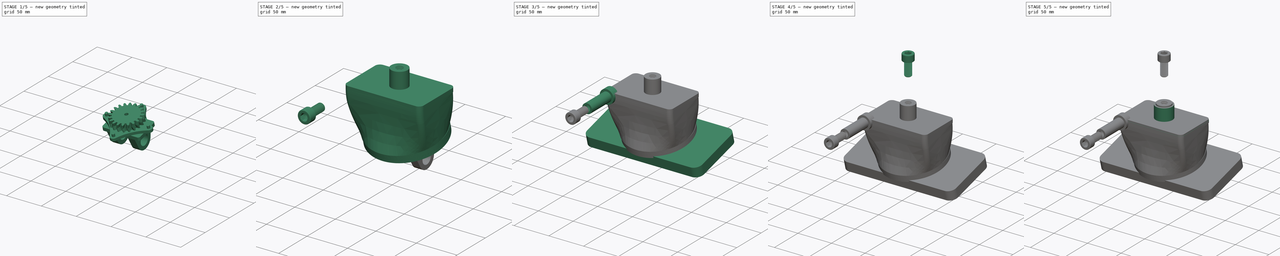
[diagram: build sequence overview — one tinted view per stage of 5, left to right]
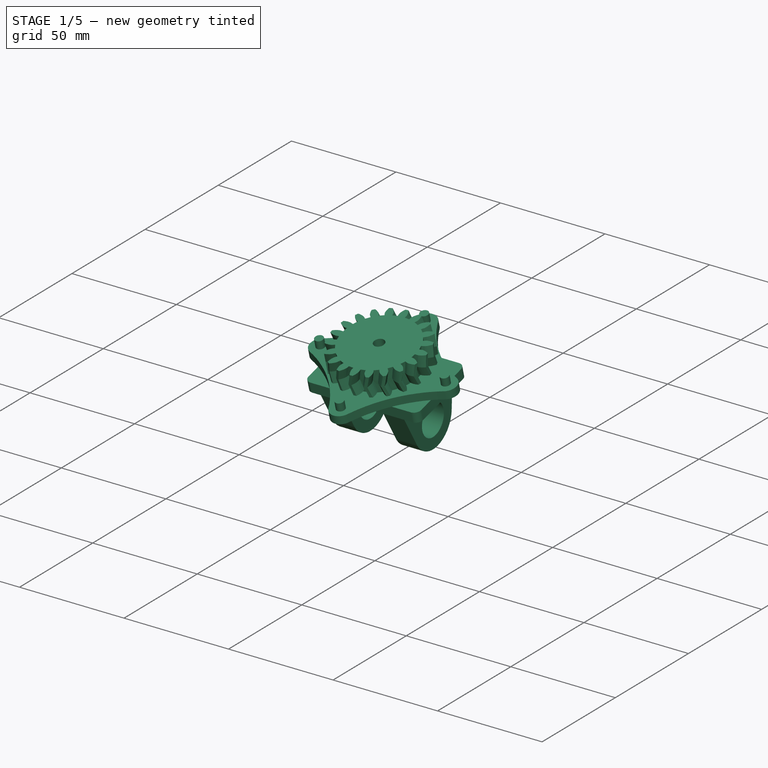
[diagram: stage 1 of 5 — iso view after this stage's code; geometry added in this stage tinted green]
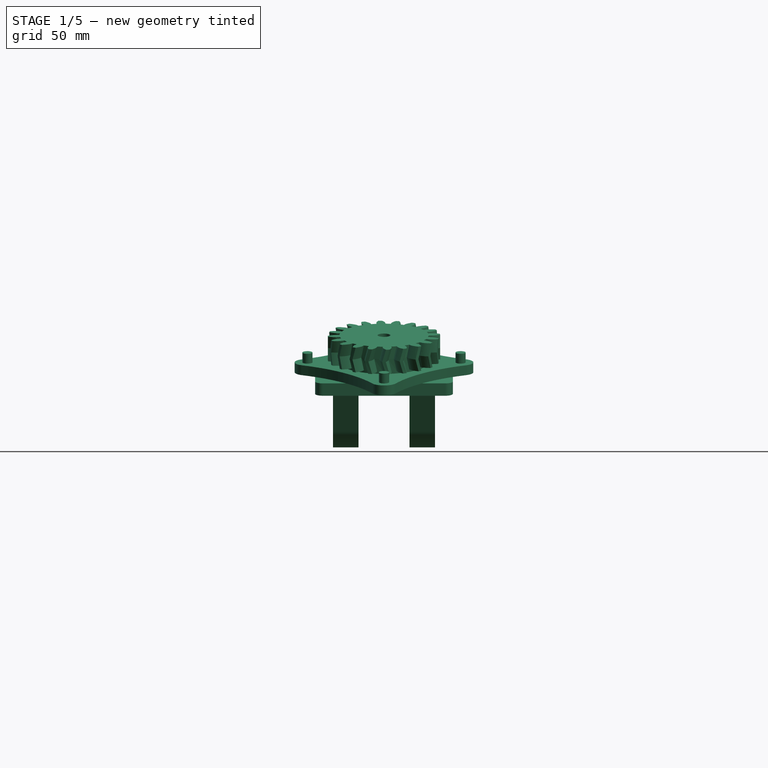
[diagram: stage 1 of 5 — front view after this stage's code; geometry added in this stage tinted green]
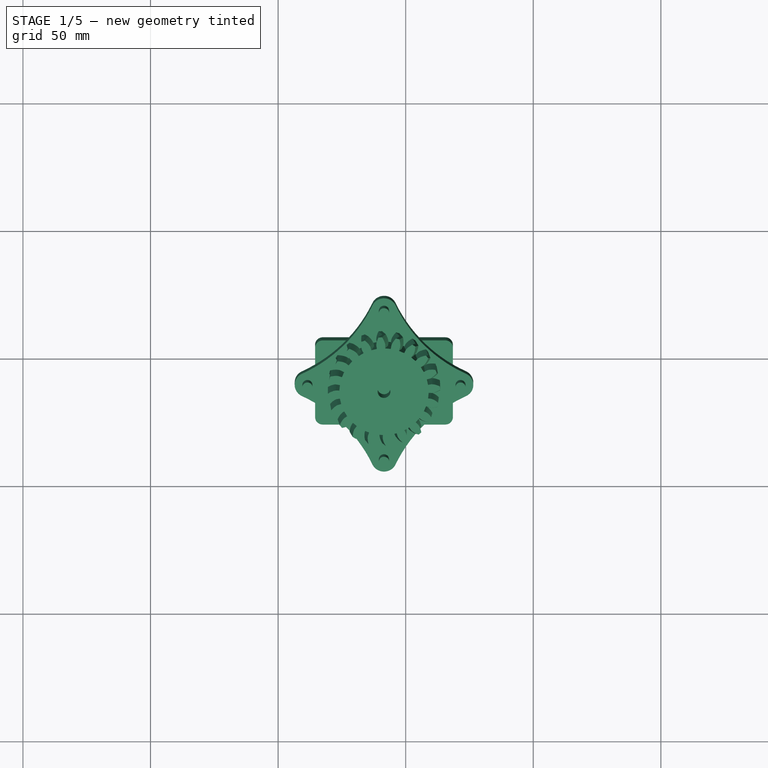
[diagram: stage 1 of 5 — top view after this stage's code; geometry added in this stage tinted green]
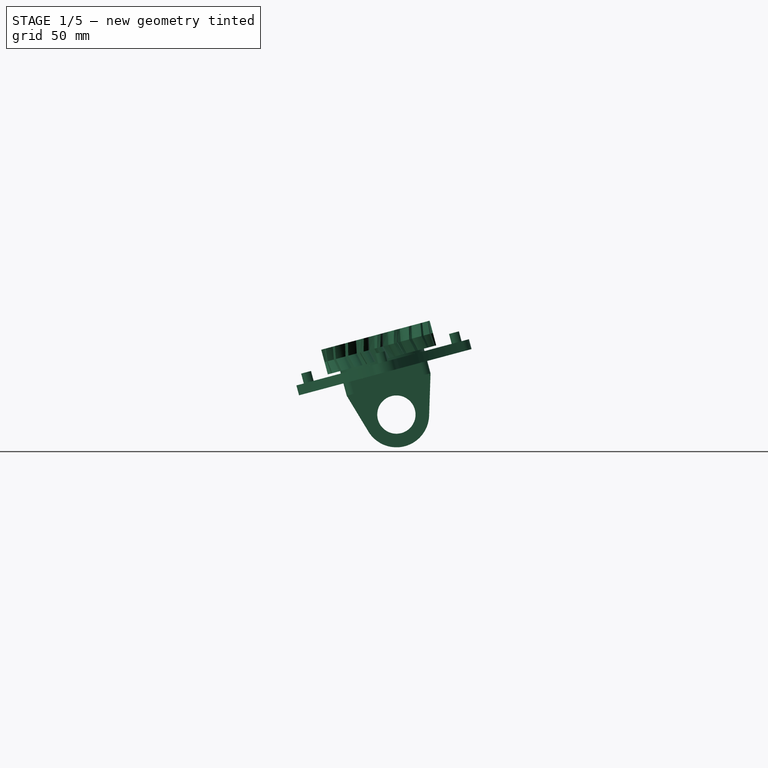
[diagram: stage 1 of 5 — right view after this stage's code; geometry added in this stage tinted green]
FCSTD DOCUMENT  (FreeCAD 0.22R38385 (Git))
Label: artillery 
License: All rights reserved
objects: Sketcher::SketchObject×27, PartDesign::Pad×13, PartDesign::Body×10, PartDesign::Pocket×8, PartDesign::Point×4, Part::FeaturePython×4, PartDesign::FeaturePython×4, PartDesign::SubShapeBinder×4, PartDesign::Hole×3, Part::Compound×2, PartDesign::Thickness×1, PartDesign::AdditivePipe×1
note: 164 computed .brp shape members not serialized (recipe doc carries the construction recipe); baked Part::Feature solids carry a one-line shape summary decoded from their .brp

FEATURE [Sketcher::SketchObject] Sketch007
  ArcFitTolerance = 1e-06
  AttachmentSupport = -> [InvoluteGear]
  FullyConstrained = true
  MakeInternals = false
  MapMode = 5
  Placement = pos=(41.4968,38.9972,-56.3196) rot=(0.704063,-0.704063,-0.092692;3.32645rad)
  sketch-geometry (1):
    g0: Circle CenterX=0 CenterY=0 CenterZ=0 NormalX=0 NormalY=0 NormalZ=1 AngleXU=0 Radius=17
  constraints (2):
    c: Diameter(g0) = 34
    c: Coincident(g0,g-1)
FEATURE [PartDesign::Pad] Pad006
  Direction = (-1.82006e-07,0.258821,-0.965925)
  Length = 5
  Length2 = 10
  Placement = pos=(41.4968,38.9972,-56.3197) rot=(0.129428,0.129428,-0.983106;1.58783rad)
  Profile = -> Sketch007
  ReferenceAxis = -> Sketch007 [N_Axis]
  Refine = true
  Suppressed = false
  Type = 0
FEATURE [Sketcher::SketchObject] Sketch008
  ArcFitTolerance = 1e-06
  AttachmentSupport = -> [Pad006]
  ExternalGeometry = -> [Pad006]
  FullyConstrained = true
  MakeInternals = false
  MapMode = 5
  Placement = pos=(41.4968,40.2913,-61.1493) rot=(0.704063,-0.704063,-0.092692;3.32645rad)
  sketch-geometry (10):
    g0: LineSegment StartX=-17 StartY=24 StartZ=0 EndX=-17 EndY=-24 EndZ=0
    g1: LineSegment StartX=-14 StartY=-27 StartZ=0 EndX=14 EndY=-27 EndZ=0
    g2: LineSegment StartX=17 StartY=-24 StartZ=0 EndX=17 EndY=24 EndZ=0
    g3: LineSegment StartX=14 StartY=27 StartZ=0 EndX=-14 EndY=27 EndZ=0
    g4: ArcOfCircle CenterX=-14 CenterY=24 CenterZ=0 NormalX=0 NormalY=0 NormalZ=1 AngleXU=0 Radius=3 StartAngle=1.5708 EndAngle=3.14159
    g5: ArcOfCircle CenterX=-14 CenterY=-24 CenterZ=0 NormalX=0 NormalY=0 NormalZ=1 AngleXU=0 Radius=3 StartAngle=3.14159 EndAngle=4.71239
    g6: ArcOfCircle CenterX=14 CenterY=-24 CenterZ=0 NormalX=0 NormalY=0 NormalZ=1 AngleXU=0 Radius=3 StartAngle=4.71239 EndAngle=6.28319
    g7: ArcOfCircle CenterX=14 CenterY=24 CenterZ=0 NormalX=0 NormalY=0 NormalZ=1 AngleXU=0 Radius=3 StartAngle=6e-16 EndAngle=1.5708
    g8: GeomPoint [constr] X=-17 Y=27 Z=0
    g9: GeomPoint [constr] X=17 Y=-27 Z=0
  constraints (24):
    c: Tangent(g0,g4) = -1.5708
    c: Tangent(g0,g5) = -1.5708
    c: Tangent(g1,g5) = -1.5708
    c: Tangent(g1,g6) = -1.5708
    c: Tangent(g2,g6) = -1.5708
    c: Tangent(g2,g7) = -1.5708
    c: Tangent(g3,g7) = -1.5708
    c: Tangent(g3,g4) = -1.5708
    c: Vertical(g0)
    c: Vertical(g2)
    c: Horizontal(g1)
    c: Horizontal(g3)
    c: Equal(g4,g5)
    c: Equal(g5,g6)
    c: Equal(g6,g7)
    c: PointOnObject(g8,g0)
    c: PointOnObject(g8,g3)
    c: PointOnObject(g9,g1)
    c: PointOnObject(g9,g2)
    c: Radius(g5) = 3
    c: Distance(g-3,g3) = 10
    c: Distance(g-3,g1) = 10
    c: Tangent(g0,g-3)
    c: Tangent(g-3,g2)
FEATURE [PartDesign::Pad] Pad007
  BaseFeature = -> Pad006
  Direction = (-1.82006e-07,0.258821,-0.965925)
  Length = 5
  Length2 = 10
  Placement = pos=(41.4968,38.9972,-56.3197) rot=(0.129428,0.129428,-0.983106;1.58783rad)
  Profile = -> Sketch008
  ReferenceAxis = -> Sketch008 [N_Axis]
  Refine = true
  Suppressed = false
  Type = 0
FEATURE [Sketcher::SketchObject] Sketch009
  ArcFitTolerance = 1e-06
  AttachmentSupport = -> [Pad007]
  ExternalGeometry = -> [Pad007]
  FullyConstrained = true
  MakeInternals = false
  MapMode = 5
  Placement = pos=(41.4968,41.5854,-65.9789) rot=(0.704063,-0.704063,-0.092692;3.32645rad)
  sketch-geometry (8):
    g0: LineSegment StartX=-17 StartY=20 StartZ=0 EndX=-17 EndY=10 EndZ=0
    g1: LineSegment StartX=-17 StartY=10 StartZ=0 EndX=17 EndY=10 EndZ=0
    g2: LineSegment StartX=17 StartY=10 StartZ=0 EndX=17 EndY=20 EndZ=0
    g3: LineSegment StartX=17 StartY=20 StartZ=0 EndX=-17 EndY=20 EndZ=0
    g4: LineSegment StartX=-17 StartY=-20 StartZ=0 EndX=17 EndY=-20 EndZ=0
    g5: LineSegment StartX=17 StartY=-20 StartZ=0 EndX=17 EndY=-10 EndZ=0
    g6: LineSegment StartX=17 StartY=-10 StartZ=0 EndX=-17 EndY=-10 EndZ=0
    g7: LineSegment StartX=-17 StartY=-10 StartZ=0 EndX=-17 EndY=-20 EndZ=0
  constraints (24):
    c: Coincident(g0,g1)
    c: Coincident(g1,g2)
    c: Coincident(g2,g3)
    c: Coincident(g3,g0)
    c: Vertical(g0)
    c: Vertical(g2)
    c: Horizontal(g1)
    c: Horizontal(g3)
    c: PointOnObject(g0,g-3)
    c: PointOnObject(g1,g-4)
    c: Coincident(g4,g5)
    c: Coincident(g5,g6)
    c: Coincident(g6,g7)
    c: Coincident(g7,g4)
    c: Horizontal(g4)
    c: Horizontal(g6)
    c: Vertical(g5)
    c: Vertical(g7)
    c: PointOnObject(g4,g-3)
    c: PointOnObject(g5,g-4)
    c: Distance(g4,g6) = 10
    c: Distance(g1,g3) = 10
    c: Distance(g-1,g1) = 10
    c: Distance(g-1,g6) = 10
FEATURE [PartDesign::Pad] Pad008
  BaseFeature = -> Pad007
  Direction = (-1.82006e-07,0.258821,-0.965925)
  Length = 25
  Length2 = 10
  Placement = pos=(41.4968,38.9972,-56.3197) rot=(0.129428,0.129428,-0.983106;1.58783rad)
  Profile = -> Sketch009
  ReferenceAxis = -> Sketch009 [N_Axis]
  Refine = true
  Suppressed = false
  Type = 0
FEATURE [Sketcher::SketchObject] Sketch010
  ArcFitTolerance = 1e-06
  AttachmentSupport = -> [Pad008]
  ExternalGeometry = -> [Pad008]
  FullyConstrained = false
  MakeInternals = false
  MapMode = 5
  Placement = pos=(21.4968,38.9972,-56.3197) rot=(-0.621515,0.476905,0.621515;4.0316rad)
  sketch-geometry (10):
    g0: LineSegment [constr] StartX=-26.3486 StartY=-22.1723 StartZ=0 EndX=19.9653 EndY=-22.1723 EndZ=0
    g1: LineSegment [constr] StartX=0.105856 StartY=-9.58613 StartZ=0 EndX=0.106285 EndY=-22.1723 EndZ=0
    g2: Circle CenterX=0.106285 CenterY=-22.1723 CenterZ=0 NormalX=0 NormalY=0 NormalZ=1 AngleXU=0 Radius=7.5
    g3: ArcOfCircle CenterX=0.106285 CenterY=-22.1723 CenterZ=0 NormalX=0 NormalY=0 NormalZ=1 AngleXU=0 Radius=12.8281 StartAngle=3.43661 EndAngle=6.00051
    g4: LineSegment StartX=-17 StartY=-9.99993 StartZ=0 EndX=-12.1676 EndY=-25.9021 EndZ=0
    g5: LineSegment StartX=17 StartY=-10 StartZ=0 EndX=12.4253 EndY=-25.7504 EndZ=0
    g6: LineSegment StartX=-17 StartY=-9.99993 StartZ=0 EndX=-17.0001 EndY=-34.9999 EndZ=0
    g7: LineSegment StartX=-17.0001 StartY=-34.9999 StartZ=0 EndX=0 EndY=-34.9999 EndZ=0
    g8: LineSegment StartX=17 StartY=-10 StartZ=0 EndX=16.9999 EndY=-35 EndZ=0
    g9: LineSegment StartX=16.9999 StartY=-35 StartZ=0 EndX=0 EndY=-34.9999 EndZ=0
  constraints (16):
    c: Horizontal(g0)
    c: PointOnObject(g1,g0)
    c: Diameter(g2) = 15
    c: Coincident(g2,g1)
    c: Coincident(g3,g1)
    c: Block(g3)
    c: Tangent(g3,g5) = 1.5708
    c: Tangent(g3,g4) = -1.5708
    c: Coincident(g6,g4)
    c: Coincident(g7,g6)
    c: PointOnObject(g7,g3)
    c: Horizontal(g7)
    c: PointOnObject(g7,g-2)
    c: Coincident(g8,g5)
    c: Coincident(g9,g8)
    c: Coincident(g9,g7)
FEATURE [PartDesign::Pocket] Pocket
  BaseFeature = -> Pad008
  Direction = (1,4.71066e-08,-1.75805e-07)
  Length = 5
  Length2 = 5
  Placement = pos=(41.4968,38.9972,-56.3197) rot=(0.129428,0.129428,-0.983106;1.58783rad)
  Profile = -> Sketch010
  ReferenceAxis = -> Sketch010 [N_Axis]
  Refine = true
  Suppressed = false
  Type = 1
FEATURE [Sketcher::SketchObject] Sketch024
  ArcFitTolerance = 1e-06
  FullyConstrained = false
  MakeInternals = false
  MapMode = 5
  Placement = pos=(41.4968,40.2913,-61.1493) rot=(0.129429,0.129429,-0.983105;1.58783rad)
  sketch-geometry (20):
    g0: Circle CenterX=0 CenterY=0 CenterZ=0 NormalX=0 NormalY=0 NormalZ=1 AngleXU=0 Radius=17.5
    g1: Circle [constr] CenterX=0 CenterY=0 CenterZ=0 NormalX=0 NormalY=0 NormalZ=1 AngleXU=0 Radius=30
    g2: LineSegment [constr] StartX=-30 StartY=0 StartZ=0 EndX=30 EndY=0 EndZ=0
    g3: LineSegment [constr] StartX=0 StartY=30 StartZ=0 EndX=0 EndY=-30 EndZ=0
    g4: ArcOfCircle CenterX=0 CenterY=30 CenterZ=0 NormalX=0 NormalY=0 NormalZ=1 AngleXU=0 Radius=5 StartAngle=0.438825 EndAngle=2.70277
    g5: ArcOfCircle CenterX=-30 CenterY=0 CenterZ=0 NormalX=0 NormalY=0 NormalZ=1 AngleXU=0 Radius=5 StartAngle=2.00962 EndAngle=4.27356
    g6: ArcOfCircle CenterX=0 CenterY=-30 CenterZ=0 NormalX=0 NormalY=0 NormalZ=1 AngleXU=0 Radius=5 StartAngle=3.58042 EndAngle=5.84436
    g7: ArcOfCircle CenterX=30 CenterY=0 CenterZ=0 NormalX=0 NormalY=0 NormalZ=1 AngleXU=0 Radius=5 StartAngle=5.15121 EndAngle=7.41516
    g8: ArcOfCircle CenterX=56.534 CenterY=56.534 CenterZ=0 NormalX=0 NormalY=0 NormalZ=1 AngleXU=0 Radius=57.4512 StartAngle=3.58042 EndAngle=4.27356
    g9: ArcOfCircle CenterX=56.534 CenterY=-56.534 CenterZ=0 NormalX=0 NormalY=0 NormalZ=1 AngleXU=0 Radius=57.4512 StartAngle=2.00962 EndAngle=2.70277
    g10: ArcOfCircle CenterX=-56.534 CenterY=-56.534 CenterZ=0 NormalX=0 NormalY=0 NormalZ=1 AngleXU=0 Radius=57.4512 StartAngle=0.438825 EndAngle=1.13197
    g11: Circle [constr] CenterX=0 CenterY=0 CenterZ=0 NormalX=0 NormalY=0 NormalZ=1 AngleXU=0 Radius=22.5
    g12: ArcOfCircle CenterX=-56.534 CenterY=56.534 CenterZ=0 NormalX=0 NormalY=0 NormalZ=1 AngleXU=0 Radius=57.4512 StartAngle=5.15121 EndAngle=5.84436
    g13: Circle CenterX=30 CenterY=0 CenterZ=0 NormalX=0 NormalY=0 NormalZ=1 AngleXU=0 Radius=2
    g14: Circle CenterX=0 CenterY=-30 CenterZ=0 NormalX=0 NormalY=0 NormalZ=1 AngleXU=0 Radius=3e-16
    g15: Circle CenterX=0 CenterY=-30 CenterZ=0 NormalX=0 NormalY=0 NormalZ=1 AngleXU=0 Radius=1.3e-15
    g16: Circle CenterX=-30 CenterY=0 CenterZ=0 NormalX=0 NormalY=0 NormalZ=1 AngleXU=0 Radius=2
    g17: Circle CenterX=0 CenterY=-30 CenterZ=0 NormalX=0 NormalY=0 NormalZ=1 AngleXU=0 Radius=2
    g18: Circle CenterX=0 CenterY=30 CenterZ=0 NormalX=0 NormalY=0 NormalZ=1 AngleXU=0 Radius=2
    g19: Circle CenterX=0 CenterY=0 CenterZ=0 NormalX=0 NormalY=0 NormalZ=1 AngleXU=0 Radius=19.5
  constraints (48):
    c: Diameter(g0) = 35
    c: Coincident(g0,g-1)
    c: Diameter(g1) = 60
    c: Coincident(g1,g0)
    c: Vertical(g3)
    c: PointOnObject(g3,g1)
    c: PointOnObject(g2,g1)
    c: PointOnObject(g3,g1)
    c: PointOnObject(g2,g1)
    c: Diameter(g4) = 10
    c: Coincident(g4,g3)
    c: PointOnObject(g2,g-1)
    c: PointOnObject(g3,g-2)
    c: Coincident(g5,g2)
    c: Coincident(g6,g3)
    c: Coincident(g7,g2)
    c: Equal(g7,g5)
    c: Equal(g5,g6)
    c: Equal(g6,g4)
    c: PointOnObject(g2,g-1)
    c: Coincident(g11,g0)
    c: Distance(g0,g11) = 5
    c: Tangent(g9,g11)
    c: Tangent(g8,g11)
    c: Tangent(g10,g11)
    c: Coincident(g4,g12)
    c: Tangent(g4,g8) = 1.5708
    c: Tangent(g5,g12) = 1.5708
    c: Tangent(g5,g10) = 1.5708
    c: Tangent(g7,g8) = 1.5708
    c: Tangent(g7,g9) = 1.5708
    c: Tangent(g6,g10) = 1.5708
    c: Tangent(g6,g9) = 1.5708
    c: Diameter(g13) = 4
    c: Coincident(g13,g2)
    c: Coincident(g14,g3)
    c: Tangent(g14,g1)
    c: Coincident(g15,g3)
    c: Tangent(g15,g1)
    c: Coincident(g16,g2)
    c: Coincident(g17,g3)
    c: Coincident(g18,g3)
    c: Equal(g18,g16)
    c: Equal(g16,g17)
    c: Equal(g17,g13)
    c: Tangent(g12,g11)
    c: Coincident(g19,g0)
    c: Distance(g0,g19) = 2
FEATURE [PartDesign::Pad] Pad011
  Direction = (1.82006e-07,-0.258821,0.965925)
  Length = 4
  Length2 = 10
  Placement = pos=(41.4968,40.2913,-61.1493) rot=(0.129429,0.129429,-0.983105;1.58783rad)
  Profile = -> Sketch024 [Edge5,Edge4,Edge3,Edge2,Edge9,Edge8,Edge7,Edge6,Edge1]
  ReferenceAxis = -> Sketch024 [N_Axis]
  Refine = true
  Suppressed = false
  Type = 0
FEATURE [PartDesign::Pad] Pad012
  BaseFeature = -> Pad011
  Direction = (1.82006e-07,-0.258821,0.965925)
  Length = 8
  Length2 = 10
  Placement = pos=(41.4968,40.2913,-61.1493) rot=(0.129429,0.129429,-0.983105;1.58783rad)
  Profile = -> Sketch024 [Edge13,Edge10,Edge14,Edge12]
  ReferenceAxis = -> Sketch024 [N_Axis]
  Refine = true
  Suppressed = false
  Type = 0
FEATURE [Sketcher::SketchObject] Sketch026
  ArcFitTolerance = 1e-06
  AttachmentSupport = -> [Pocket]
  FullyConstrained = true
  MakeInternals = false
  MapMode = 5
  Placement = pos=(41.4968,36.4091,-46.6604) rot=(0.129427,0.129427,-0.983106;1.58783rad)
FEATURE [PartDesign::Body] Body001  label="phone holder body"
  AllowCompound = false
  Group = -> [Sketch002,Sketch004,DatumPoint002,DatumPoint,Sketch005,Sketch013,Sketch014,Sketch015,AdditivePipe,Pad009,Hole001,Sketch025,Binder,Binder001,Binder002,Binder003,Pad013,Sketch026]
  Origin = -> Origin001
  Tip = -> Pad013
FEATURE [Sketcher::SketchObject] Sketch027
  ArcFitTolerance = 1e-06
  AttachmentSupport = -> [Pocket]
  FullyConstrained = true
  MakeInternals = false
  MapMode = 5
  Placement = pos=(41.4968,36.4091,-46.6604) rot=(0.129427,0.129427,-0.983106;1.58783rad)
  sketch-geometry (1):
    g0: Circle CenterX=0 CenterY=0 CenterZ=0 NormalX=0 NormalY=0 NormalZ=1 AngleXU=0 Radius=2.5
  constraints (2):
    c: Diameter(g0) = 5
    c: Coincident(g0,g-1)
FEATURE [PartDesign::Pocket] Pocket007
  BaseFeature = -> Pocket
  Direction = (1.7082e-07,0.258816,-0.965927)
  Length = 6
  Length2 = 5
  Placement = pos=(41.4968,38.9972,-56.3197) rot=(0.129428,0.129428,-0.983106;1.58783rad)
  Profile = -> Sketch027
  ReferenceAxis = -> Sketch027 [N_Axis]
  Refine = true
  Suppressed = false
  Type = 0
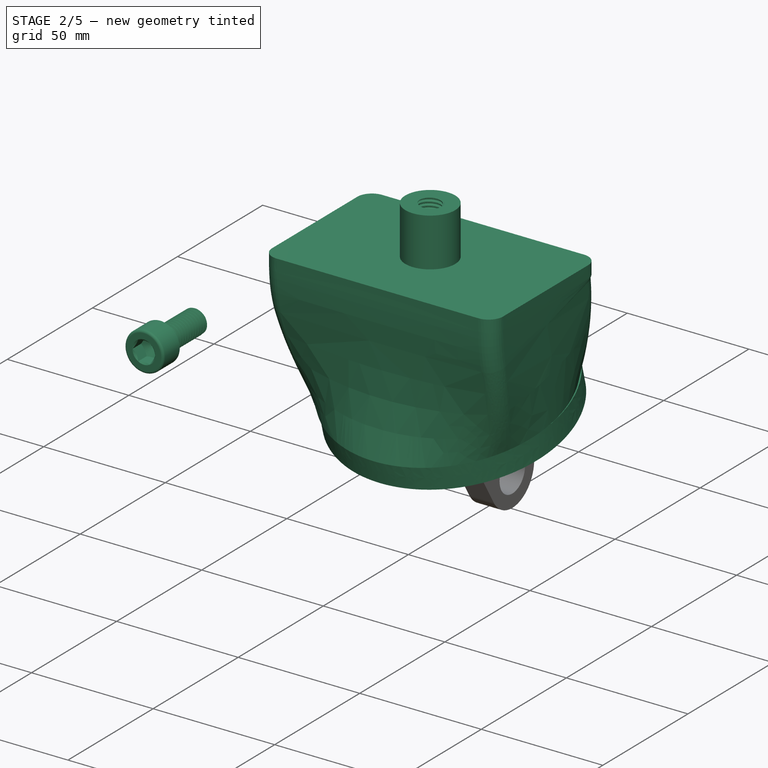
[diagram: stage 2 of 5 — iso view after this stage's code; geometry added in this stage tinted green]
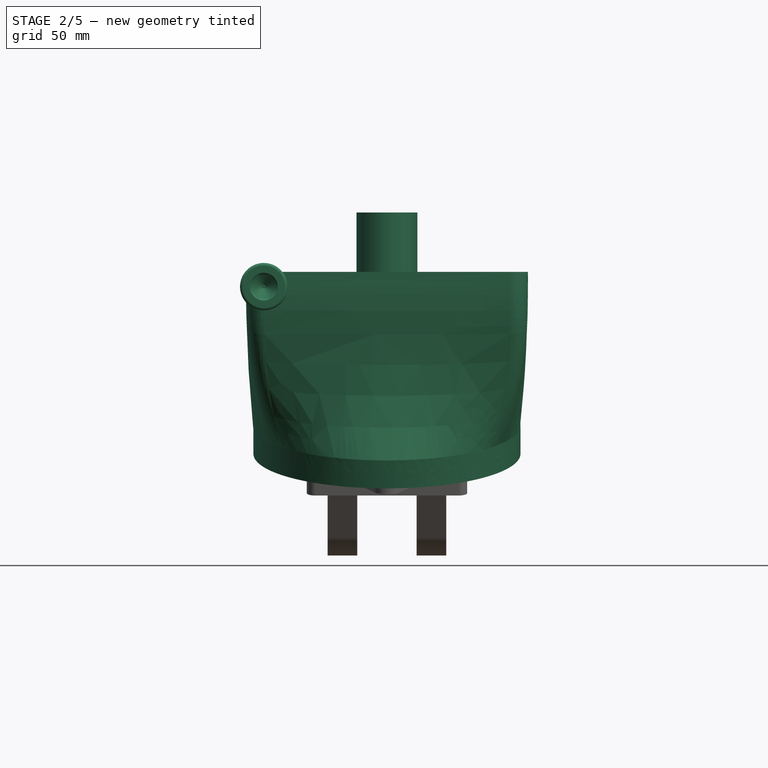
[diagram: stage 2 of 5 — front view after this stage's code; geometry added in this stage tinted green]
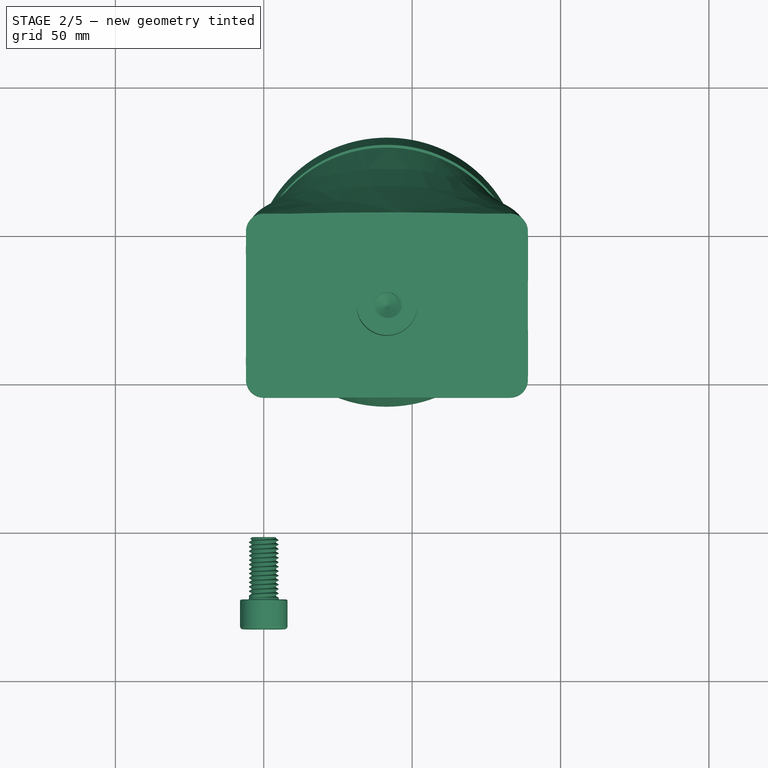
[diagram: stage 2 of 5 — top view after this stage's code; geometry added in this stage tinted green]
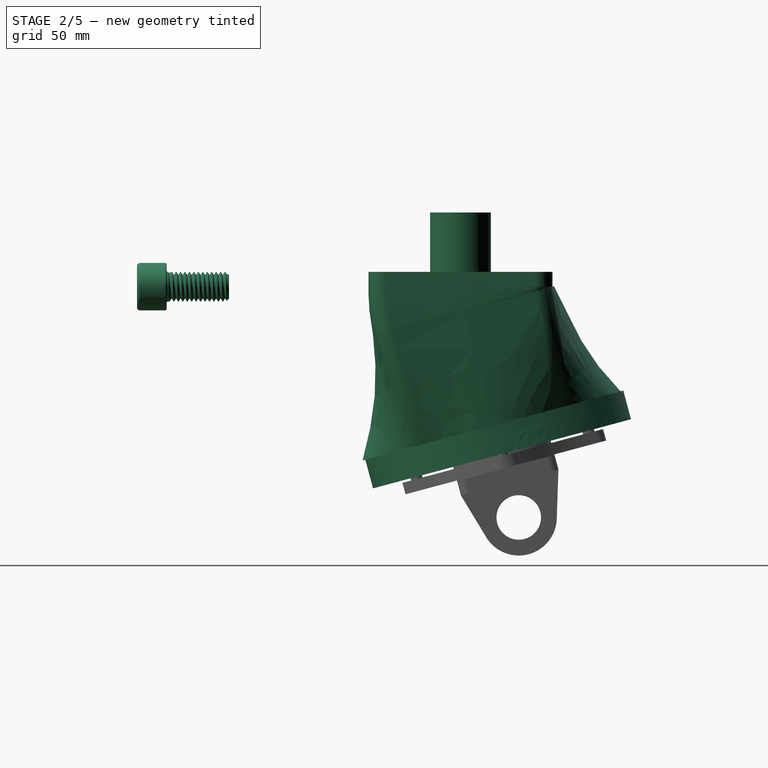
[diagram: stage 2 of 5 — right view after this stage's code; geometry added in this stage tinted green]
FEATURE [PartDesign::Body] Body  label="phone holder base "
  AllowCompound = false
  Group = -> [Sketch,Pad,Sketch001,Pad001,Sketch012,Pocket001,Hole]
  Origin = -> Origin
  Placement = pos=(83,50,33) rot=(0,0,1;3.14159rad)
  Tip = -> Hole
FEATURE [Sketcher::SketchObject] Sketch013
  ArcFitTolerance = 1e-06
  FullyConstrained = true
  MakeInternals = false
  MapMode = 5
  Placement = pos=(0,0,5) rot=(0,0,1;0rad)
  sketch-geometry (14):
    g0: LineSegment [constr] StartX=0 StartY=0 StartZ=0 EndX=83 EndY=0 EndZ=0
    g1: LineSegment [constr] StartX=83 StartY=0 StartZ=0 EndX=83 EndY=50 EndZ=0
    g2: LineSegment [constr] StartX=83 StartY=50 StartZ=0 EndX=0 EndY=50 EndZ=0
    g3: LineSegment [constr] StartX=0 StartY=50 StartZ=0 EndX=0 EndY=0 EndZ=0
    g4: LineSegment StartX=-6 StartY=50 StartZ=0 EndX=-6 EndY=0 EndZ=0
    g5: LineSegment StartX=-9e-16 StartY=-6 StartZ=0 EndX=83 EndY=-6 EndZ=0
    g6: LineSegment StartX=89 StartY=-1.7e-15 StartZ=0 EndX=89 EndY=50 EndZ=0
    g7: LineSegment StartX=83 StartY=56 StartZ=0 EndX=0 EndY=56 EndZ=0
    g8: ArcOfCircle CenterX=0 CenterY=50 CenterZ=0 NormalX=0 NormalY=0 NormalZ=1 AngleXU=0 Radius=6 StartAngle=1.5708 EndAngle=3.14159
    g9: ArcOfCircle CenterX=2e-16 CenterY=-3e-16 CenterZ=0 NormalX=0 NormalY=0 NormalZ=1 AngleXU=0 Radius=6 StartAngle=3.14159 EndAngle=4.71239
    g10: ArcOfCircle CenterX=83 CenterY=-2e-16 CenterZ=0 NormalX=0 NormalY=0 NormalZ=1 AngleXU=0 Radius=6 StartAngle=4.71239 EndAngle=6.28319
    g11: ArcOfCircle CenterX=83 CenterY=50 CenterZ=0 NormalX=0 NormalY=0 NormalZ=1 AngleXU=0 Radius=6 StartAngle=3e-16 EndAngle=1.5708
    g12: GeomPoint [constr] X=-6 Y=56 Z=0
    g13: GeomPoint [constr] X=89 Y=-6 Z=0
  constraints (35):
    c: Coincident(g0,g1)
    c: Coincident(g1,g2)
    c: Coincident(g2,g3)
    c: Coincident(g3,g0)
    c: Horizontal(g0)
    c: Horizontal(g2)
    c: Vertical(g1)
    c: Vertical(g3)
    c: Distance(g1,g3) = 83
    c: Distance(g0,g2) = 50
    c: Coincident(g0,g-1)
    c: Tangent(g4,g8) = -1.5708
    c: Tangent(g4,g9) = -1.5708
    c: Tangent(g5,g9) = -1.5708
    c: Tangent(g5,g10) = -1.5708
    c: Tangent(g6,g10) = -1.5708
    c: Tangent(g6,g11) = -1.5708
    c: Tangent(g7,g11) = -1.5708
    c: Tangent(g7,g8) = -1.5708
    c: Vertical(g4)
    c: Vertical(g6)
    c: Horizontal(g5)
    c: Horizontal(g7)
    c: Equal(g8,g9)
    c: Equal(g9,g10)
    c: Equal(g10,g11)
    c: PointOnObject(g12,g4)
    c: PointOnObject(g12,g7)
    c: PointOnObject(g13,g5)
    c: PointOnObject(g13,g6)
    c: Radius(g9) = 6
    c: Distance(g1,g6) = 6
    c: Distance(g7,g2) = 6
    c: Distance(g3,g4) = 6
    c: Distance(g0,g5) = 6
FEATURE [Sketcher::SketchObject] Sketch004
  ArcFitTolerance = 0
  AttachmentSupport = -> [YZ_Plane001,DatumPoint002]
  ExternalGeometry = -> [Sketch013]
  FullyConstrained = false
  MakeInternals = false
  MapMode = 53
  Placement = pos=(41.5,-4.6e-15,4.6e-15) rot=(0.57735,0.57735,0.57735;2.0944rad)
  sketch-geometry (6):
    g0: LineSegment [constr] StartX=-6 StartY=0 StartZ=0 EndX=56 EndY=0 EndZ=0
    g1: LineSegment [constr] StartX=25 StartY=28.694 StartZ=0 EndX=25 EndY=0 EndZ=0
    g2: ArcOfCircle CenterX=56 CenterY=0 CenterZ=0 NormalX=0 NormalY=0 NormalZ=1 AngleXU=0 Radius=31 StartAngle=3.14159 EndAngle=3.40339
    g3: LineSegment StartX=26.0563 StartY=-8.02338 StartZ=0 EndX=36.4091 EndY=-46.6604 EndZ=0
    g4: LineSegment StartX=25 StartY=0 StartZ=0 EndX=25 EndY=5 EndZ=0
    g5: LineSegment StartX=25 StartY=5 StartZ=0 EndX=25 EndY=24.9945 EndZ=0
  constraints (12):
    c: Symmetric(g0,g0,g1)
    c: PointOnObject(g1,g0)
    c: Angle(g2) = 0.261799
    c: Coincident(g2,g0)
    c: Coincident(g2,g1)
    c: Distance(g3) = 40
    c: Angle(g-1,g3) = -1.309
    c: Coincident(g3,g2)
    c: Coincident(g4,g1)
    c: Coincident(g5,g4)
    c: PointOnObject(g5,g1)
    c: Vertical(g5)
FEATURE [Sketcher::SketchObject] Sketch014
  ArcFitTolerance = 1e-06
  FullyConstrained = false
  MakeInternals = false
  MapMode = 5
  Placement = pos=(0,0,25) rot=(0,0,1;0rad)
  sketch-geometry (1):
    g0: Circle CenterX=41.5 CenterY=25 CenterZ=0 NormalX=0 NormalY=0 NormalZ=1 AngleXU=0 Radius=10.1623
FEATURE [Sketcher::SketchObject] Sketch015
  ArcFitTolerance = 1e-06
  ExternalGeometry = -> [Sketch014]
  FullyConstrained = false
  MakeInternals = false
  MapMode = 5
  Placement = pos=(0,0,5) rot=(0,0,1;0rad)
  sketch-geometry (1):
    g0: Circle CenterX=41.5 CenterY=25 CenterZ=0 NormalX=0 NormalY=0 NormalZ=1 AngleXU=0 Radius=10.2399
  constraints (1):
    c: Tangent(g0,g-3) = -1.5708
FEATURE [PartDesign::AdditivePipe] AdditivePipe
  AuxilleryCurvelinear = true
  AuxillerySpineTangent = false
  Binormal = (0,0,0)
  Mode = 0
  Placement = pos=(0,14.104,-52.637) rot=(1,0,0;3.40339rad)
  Profile = -> Sketch005
  Refine = true
  Sections = -> [Sketch002,Sketch013]
  Spine = -> Sketch004 [Edge4,Edge3,Edge2]
  SpineTangent = false
  Suppressed = false
  Transformation = 1
  Transition = 0
FEATURE [PartDesign::Pad] Pad009
  BaseFeature = -> AdditivePipe
  Direction = (0,0,1)
  Length = 20
  Length2 = 10
  Placement = pos=(0,14.104,-52.637) rot=(1,0,0;3.40339rad)
  Profile = -> Sketch015 [Edge1]
  ReferenceAxis = -> Sketch015 [N_Axis]
  Refine = true
  Suppressed = false
  Type = 0
FEATURE [PartDesign::Hole] Hole001
  BaseFeature = -> Pad009
  CustomThreadClearance = 0
  Depth = 18
  DepthType = 0
  Diameter = 8.532
  DrillForDepth = false
  DrillPoint = 1
  DrillPointAngle = 118
  HoleCutCountersinkAngle = 90
  HoleCutCustomValues = false
  HoleCutDepth = 0
  HoleCutDiameter = 6.1
  HoleCutType = 0
  ModelThread = true
  Placement = pos=(0,14.104,-52.637) rot=(1,0,0;3.40339rad)
  Profile = -> Pad009 [Face21]
  Refine = true
  Suppressed = false
  Tapered = false
  TaperedAngle = 90
  ThreadClass = 0
  ThreadDepth = 18
  ThreadDepthType = 0
  ThreadDirection = 0
  ThreadFit = 0
  ThreadSize = 18
  ThreadType = 1
  Threaded = true
  UseCustomThreadClearance = false
FEATURE [Part::FeaturePython] InternalInvoluteGear  # WARN: FeaturePython — macro-defined, semantics opaque (R4)
  AttacherType = Attacher::AttachEngine3D
  AttachmentSupport = -> [DatumPoint,Hole001]
  MapMode = 6
  Placement = pos=(41.5,36.4091,-46.6604) rot=(0,0.991445,0.130526;3.14159rad)
  angular_backlash = 0
  backlash = 0
  beta = 15
  clearance = 0.25
  da = 77.6
  df = 85
  double_helix = true
  dw = 80
  head = -0.4
  head_fillet = 0
  height = 10
  module = 2
  numpoints = 20
  outside_diameter = 90
  pressure_angle = 20
  properties_from_tool = false
  reversed_backlash = false
  root_fillet = 0
  shift = 0
  simple = false
  teeth = 40
  thickness = 5
  transverse_pitch = 6.28319
  version = 1.2.0
  expr: angular_backlash = backlash / dw * 360 ° / pi
FEATURE [PartDesign::Body] Body008  label="planetary x"
  AllowCompound = false
  Group = -> [Sketch024,Pad011,Pad012]
  Origin = -> Origin009
  Placement = pos=(0,0,0.25) rot=(0,0,1;0rad)
  Tip = -> Pad012
FEATURE [PartDesign::Point] DatumPoint004
  AttacherType = Attacher::AttachEnginePoint
  AttachmentSupport = -> [Hole001]
  MapMode = 37
  Placement = pos=(41.3665,35.4831,-46.9085) rot=(0,0,1;0rad)
FEATURE [PartDesign::Body] Body003  label="phone holder"
  AllowCompound = false
  Group = -> [Sketch006,Pad004,DatumPoint003,Thickness,Sketch022,Pad010,Sketch023,Pocket006,DatumPoint004]
  Origin = -> Origin003
  Placement = pos=(0,13,-51.5) rot=(0,0,1;0rad)
  Tip = -> Pocket006
FEATURE [PartDesign::SubShapeBinder] Binder
  BindCopyOnChange = 0
  BindMode = 0
  ClaimChildren = false
  Context = -> Body001 [Binder.]
  Fuse = false
  MakeFace = true
  OffsetFill = false
  OffsetIntersection = false
  OffsetJoinType = 0
  OffsetOpenResult = false
  PartialLoad = false
  Refine = true
  Relative = true
  Support = -> [Body002[Sketch011.Edge1]]
  _Version = 2
FEATURE [PartDesign::SubShapeBinder] Binder001
  BindCopyOnChange = 0
  BindMode = 0
  ClaimChildren = false
  Context = -> Body001 [Binder001.]
  Fuse = false
  MakeFace = true
  OffsetFill = false
  OffsetIntersection = false
  OffsetJoinType = 0
  OffsetOpenResult = false
  PartialLoad = false
  Refine = true
  Relative = true
  Support = -> [Body002[Sketch011.Edge3]]
  _Version = 2
FEATURE [PartDesign::SubShapeBinder] Binder002
  BindCopyOnChange = 0
  BindMode = 0
  ClaimChildren = false
  Context = -> Body001 [Binder002.]
  Fuse = false
  MakeFace = true
  OffsetFill = false
  OffsetIntersection = false
  OffsetJoinType = 0
  OffsetOpenResult = false
  PartialLoad = false
  Refine = true
  Relative = true
  Support = -> [Body002[Sketch011.Edge2]]
  _Version = 2
FEATURE [PartDesign::SubShapeBinder] Binder003
  BindCopyOnChange = 0
  BindMode = 0
  ClaimChildren = false
  Context = -> Body001 [Binder003.]
  Fuse = false
  MakeFace = true
  OffsetFill = false
  OffsetIntersection = false
  OffsetJoinType = 0
  OffsetOpenResult = false
  PartialLoad = false
  Refine = true
  Relative = true
  Support = -> [Body002[Sketch011.Edge4]]
  _Version = 2
FEATURE [Sketcher::SketchObject] Sketch025
  ArcFitTolerance = 1e-06
  AttachmentSupport = -> [AdditivePipe]
  ExternalGeometry = -> [Binder,Binder001,Binder002,Binder003]
  FullyConstrained = true
  MakeInternals = false
  MapMode = 5
  Placement = pos=(0,14.104,-52.637) rot=(1,0,0;3.40339rad)
  sketch-geometry (5):
    g0: Circle CenterX=71.5 CenterY=-23.09 CenterZ=0 NormalX=0 NormalY=0 NormalZ=1 AngleXU=0 Radius=2
    g1: Circle CenterX=41.5 CenterY=6.91 CenterZ=0 NormalX=0 NormalY=0 NormalZ=1 AngleXU=0 Radius=2
    g2: Circle CenterX=11.5 CenterY=-23.09 CenterZ=0 NormalX=0 NormalY=0 NormalZ=1 AngleXU=0 Radius=2
    g3: Circle CenterX=41.5 CenterY=-53.09 CenterZ=0 NormalX=0 NormalY=0 NormalZ=1 AngleXU=0 Radius=2
    g4: Circle CenterX=41.5 CenterY=-23.09 CenterZ=0 NormalX=0 NormalY=0 NormalZ=1 AngleXU=0 Radius=2
  constraints (10):
    c: Diameter(g0) = 4
    c: Coincident(g0,g-5)
    c: Coincident(g1,g-4)
    c: Coincident(g2,g-3)
    c: Coincident(g3,g-6)
    c: Equal(g3,g0)
    c: Equal(g0,g2)
    c: Equal(g2,g1)
    c: Diameter(g4) = 4
    c: Coincident(g4,g-6)
FEATURE [PartDesign::Pad] Pad013
  BaseFeature = -> Hole001
  Direction = (0,0.258819,-0.965926)
  Length = 5
  Length2 = 10
  Placement = pos=(0,14.104,-52.637) rot=(1,0,0;3.40339rad)
  Profile = -> Sketch025
  ReferenceAxis = -> Sketch025 [N_Axis]
  Refine = true
  Suppressed = false
  Type = 0
FEATURE [PartDesign::Body] Body009  label="join"
  AllowCompound = false
  Group = -> [Sketch028,Pad014,Pad015,Hole002]
  Origin = -> Origin010
  Tip = -> Hole002
FEATURE [Part::FeaturePython] Screw001  label="M10x21-Tornillo001"  # WARN: FeaturePython — macro-defined, semantics opaque (R4)
  Diameter = 9
  Invert = false
  LeftHanded = false
  Length = 15
  LengthCustom = 21
  MatchOuter = false
  OffsetAngle = 0
  Placement = pos=(0,-74,-1.3e-15) rot=(1,0,0;1.5708rad)
  Thread = true
  Type = 74
FEATURE [Part::Compound] Compound  label="sun angler "
  Links = -> [Body008,Body002]
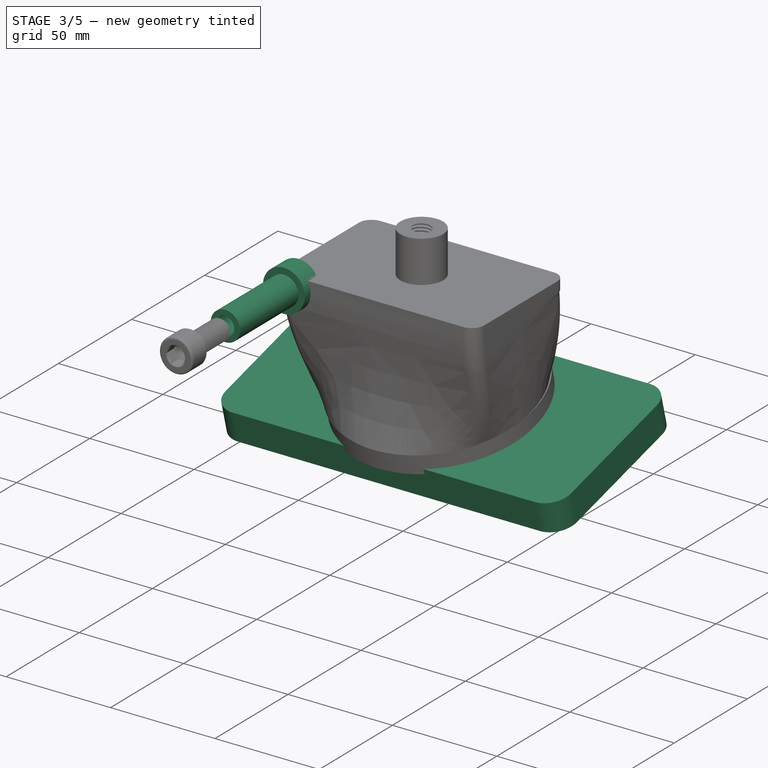
[diagram: stage 3 of 5 — iso view after this stage's code; geometry added in this stage tinted green]
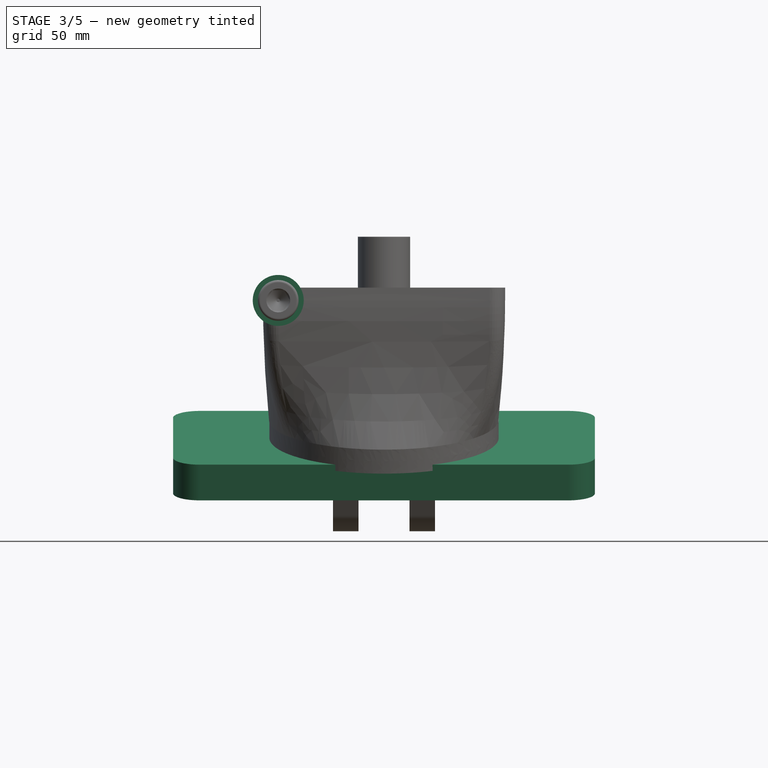
[diagram: stage 3 of 5 — front view after this stage's code; geometry added in this stage tinted green]
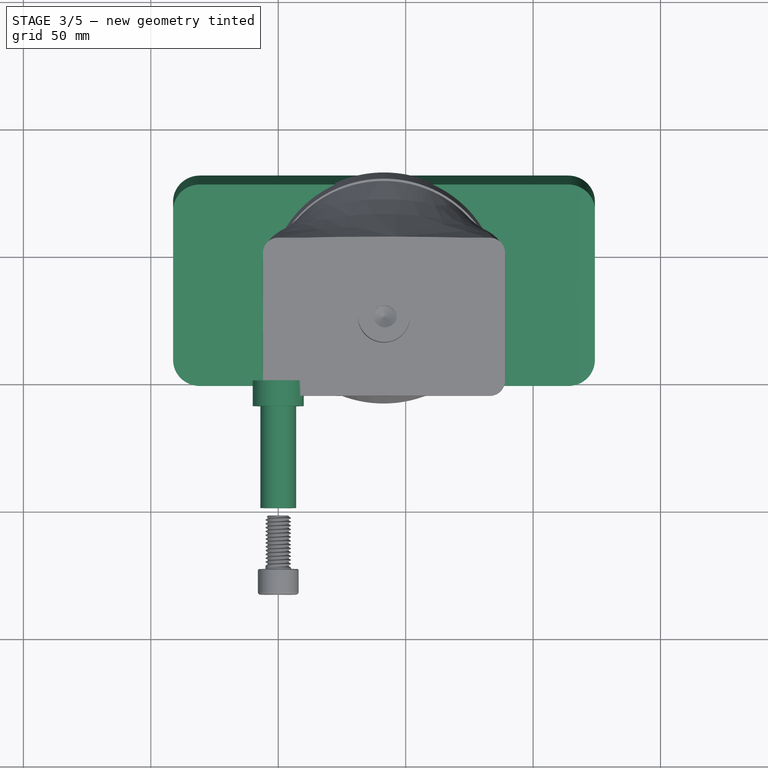
[diagram: stage 3 of 5 — top view after this stage's code; geometry added in this stage tinted green]
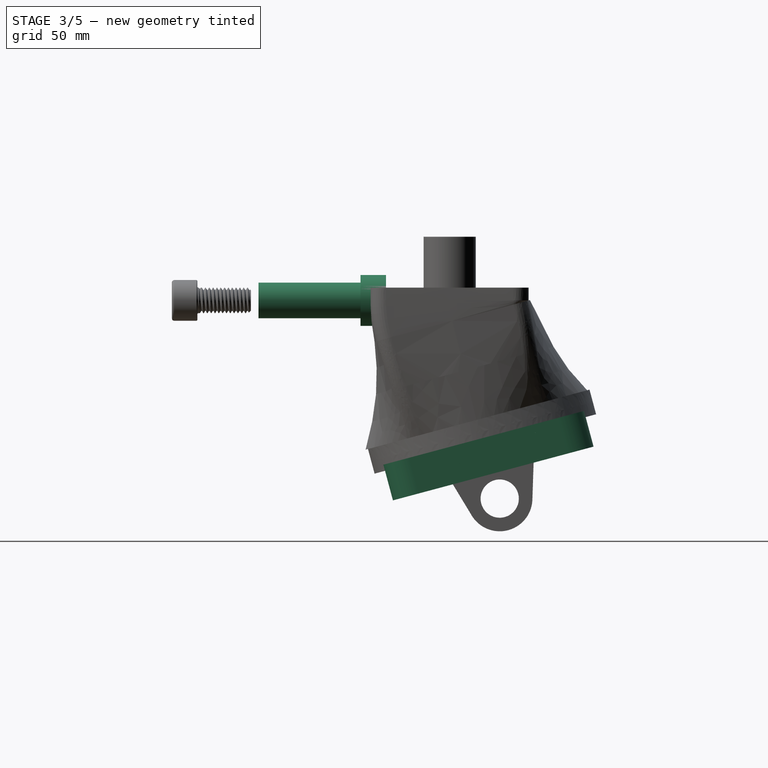
[diagram: stage 3 of 5 — right view after this stage's code; geometry added in this stage tinted green]
FEATURE [Sketcher::SketchObject] Sketch002
  ArcFitTolerance = 0
  AttachmentSupport = -> [XY_Plane001]
  FullyConstrained = false
  MakeInternals = false
  MapMode = 5
  sketch-geometry (12):
    g0: LineSegment [constr] StartX=0 StartY=50 StartZ=0 EndX=0 EndY=0 EndZ=0
    g1: LineSegment [constr] StartX=0 StartY=0 StartZ=0 EndX=83 EndY=0 EndZ=0
    g2: LineSegment [constr] StartX=83 StartY=0 StartZ=0 EndX=83 EndY=50 EndZ=0
    g3: LineSegment [constr] StartX=83 StartY=50 StartZ=0 EndX=0 EndY=50 EndZ=0
    g4: LineSegment StartX=-6 StartY=50 StartZ=0 EndX=-6 EndY=0 EndZ=0
    g5: LineSegment StartX=-9e-16 StartY=-6 StartZ=0 EndX=83 EndY=-6 EndZ=0
    g6: LineSegment StartX=89 StartY=-1.5e-15 StartZ=0 EndX=89 EndY=50 EndZ=0
    g7: LineSegment StartX=83 StartY=56 StartZ=0 EndX=0 EndY=56 EndZ=0
    g8: ArcOfCircle CenterX=0 CenterY=50 CenterZ=0 NormalX=0 NormalY=0 NormalZ=1 AngleXU=0 Radius=6 StartAngle=1.5708 EndAngle=3.14159
    g9: ArcOfCircle CenterX=0 CenterY=0 CenterZ=0 NormalX=0 NormalY=0 NormalZ=1 AngleXU=0 Radius=6 StartAngle=3.14159 EndAngle=4.71239
    g10: ArcOfCircle CenterX=83 CenterY=0 CenterZ=0 NormalX=0 NormalY=0 NormalZ=1 AngleXU=0 Radius=6 StartAngle=4.71239 EndAngle=6.28319
    g11: ArcOfCircle CenterX=83 CenterY=50 CenterZ=0 NormalX=0 NormalY=0 NormalZ=1 AngleXU=0 Radius=6 StartAngle=0 EndAngle=1.5708
  constraints (28):
    c: Coincident(g0,g1)
    c: Coincident(g1,g2)
    c: Coincident(g2,g3)
    c: Coincident(g3,g0)
    c: Vertical(g0)
    c: Vertical(g2)
    c: Horizontal(g1)
    c: Horizontal(g3)
    c: PointOnObject(g0,g-2)
    c: PointOnObject(g1,g-1)
    c: DistanceX(g3,g3) = 83
    c: DistanceY(g0,g0) = 50
    c: Vertical(g4)
    c: Vertical(g6)
    c: Horizontal(g5)
    c: Horizontal(g7)
    c: Distance(g0,g4) = 6
    c: Coincident(g8,g0)
    c: Coincident(g9,g0)
    c: Coincident(g10,g1)
    c: Coincident(g11,g2)
    c: Coincident(g8,g4)
    c: Tangent(g8,g7) = -1.5708
    c: Tangent(g6,g10) = -1.5708
    c: Tangent(g6,g11) = -1.5708
    c: PointOnObject(g7,g11)
    c: Tangent(g4,g9) = -1.5708
    c: PointOnObject(g5,g9)
FEATURE [PartDesign::Point] DatumPoint002  label="punto de centrado"
  AttacherType = Attacher::AttachEnginePoint
  MapMode = 37
  Placement = pos=(41.5,25,27) rot=(0,0,1;0rad)
FEATURE [PartDesign::Point] DatumPoint
  AttacherType = Attacher::AttachEnginePoint
  Placement = pos=(41.5,36.4091,-46.6604) rot=(0,0,1;0rad)
FEATURE [Sketcher::SketchObject] Sketch005
  ArcFitTolerance = 0
  FullyConstrained = false
  MakeInternals = false
  MapMode = 5
  Placement = pos=(0,14.104,-52.637) rot=(1,0,0;3.40339rad)
  sketch-geometry (1):
    g0: Circle CenterX=41.3665 CenterY=-22.1333 CenterZ=0 NormalX=0 NormalY=0 NormalZ=1 AngleXU=0 Radius=45
FEATURE [Sketcher::SketchObject] Sketch006
  ArcFitTolerance = 0
  FullyConstrained = true
  MakeInternals = false
  MapMode = 5
  Placement = pos=(41.5,38.9972,-56.3197) rot=(0.704063,0.704063,0.092691;3.32645rad)
  sketch-geometry (12):
    g0: LineSegment StartX=-38.25 StartY=72.2468 StartZ=0 EndX=-38.25 EndY=-72.2532 EndZ=0
    g1: LineSegment StartX=-30.25 StartY=-80.2532 StartZ=0 EndX=30.25 EndY=-80.2532 EndZ=0
    g2: LineSegment StartX=38.25 StartY=-72.2532 StartZ=0 EndX=38.25 EndY=72.2468 EndZ=0
    g3: LineSegment StartX=30.25 StartY=80.2468 StartZ=0 EndX=-30.25 EndY=80.2468 EndZ=0
    g4: ArcOfCircle CenterX=-30.25 CenterY=72.2468 CenterZ=0 NormalX=0 NormalY=0 NormalZ=1 AngleXU=0 Radius=8 StartAngle=1.5708 EndAngle=3.14159
    g5: ArcOfCircle CenterX=-30.25 CenterY=-72.2532 CenterZ=0 NormalX=0 NormalY=0 NormalZ=1 AngleXU=0 Radius=8 StartAngle=3.14159 EndAngle=4.71239
    g6: ArcOfCircle CenterX=30.25 CenterY=-72.2532 CenterZ=0 NormalX=0 NormalY=0 NormalZ=1 AngleXU=0 Radius=8 StartAngle=4.71239 EndAngle=6.28319
    g7: ArcOfCircle CenterX=30.25 CenterY=72.2468 CenterZ=0 NormalX=0 NormalY=0 NormalZ=1 AngleXU=0 Radius=8 StartAngle=-9e-16 EndAngle=1.5708
    g8: GeomPoint [constr] X=-38.25 Y=80.2468 Z=0
    g9: GeomPoint [constr] X=38.25 Y=-80.2532 Z=0
    g10: LineSegment [constr] StartX=30.25 StartY=-72.2532 StartZ=0 EndX=0 EndY=0 EndZ=0
    g11: LineSegment [constr] StartX=-30.25 StartY=-72.2532 StartZ=0 EndX=0 EndY=0 EndZ=0
  constraints (29):
    c: Tangent(g0,g4) = -1.5708
    c: Tangent(g0,g5) = -1.5708
    c: Tangent(g1,g5) = -1.5708
    c: Tangent(g1,g6) = -1.5708
    c: Tangent(g2,g6) = -1.5708
    c: Tangent(g2,g7) = -1.5708
    c: Tangent(g3,g7) = -1.5708
    c: Tangent(g3,g4) = -1.5708
    c: Vertical(g0)
    c: Vertical(g2)
    c: Horizontal(g1)
    c: Horizontal(g3)
    c: Equal(g4,g5)
    c: Equal(g5,g6)
    c: Equal(g6,g7)
    c: PointOnObject(g8,g0)
    c: PointOnObject(g8,g3)
    c: PointOnObject(g9,g1)
    c: PointOnObject(g9,g2)
    c: Distance(g0,g2) = 76.5
    c: Distance(g1,g3) = 160.5
    c: Radius(g5) = 8
    c: Coincident(g10,g6)
    c: Coincident(g11,g5)
    c: Coincident(g10,g11)
    c: Distance(g10,g10) = 78.33
    c: Distance(g11,g11) = 78.33
    c: PointOnObject(g10,g-2)
    c: PointOnObject(g10,g-1)
FEATURE [PartDesign::Pad] Pad004
  Direction = (-5.59301e-09,0.258819,-0.965926)
  Length = 12
  Length2 = 10
  Placement = pos=(41.5,38.9972,-56.3197) rot=(0.704063,0.704063,0.092691;3.32645rad)
  Profile = -> Sketch006
  ReferenceAxis = -> Sketch006 [N_Axis]
  Refine = true
  Suppressed = false
  Type = 0
FEATURE [PartDesign::Thickness] Thickness
  Base = -> Pad004 [Face10]
  BaseFeature = -> Pad004
  Intersection = true
  Join = 1
  Mode = 2
  Refine = true
  SupportTransform = false
  Suppressed = false
  Value = 2.5
FEATURE [Sketcher::SketchObject] Sketch021
  ArcFitTolerance = 1e-06
  AttachmentSupport = -> [Thickness]
  FullyConstrained = true
  MakeInternals = false
  MapMode = 5
  Placement = pos=(-3.46732e-07,16.0452,-59.8815) rot=(1,0,0;0.261799rad)
FEATURE [Sketcher::SketchObject] Sketch022
  ArcFitTolerance = 1e-06
  AttachmentSupport = -> [Thickness]
  ExternalGeometry = -> [Thickness]
  FullyConstrained = false
  MakeInternals = false
  MapMode = 5
  Placement = pos=(-3.46732e-07,16.0452,-59.8815) rot=(1,0,0;0.261799rad)
  sketch-geometry (6):
    g0: LineSegment [constr] StartX=-47.9702 StartY=23.0919 StartZ=0 EndX=138.025 EndY=23.0919 EndZ=0
    g1: LineSegment [constr] StartX=41.4968 StartY=67.3066 StartZ=0 EndX=41.4968 EndY=-31.6325 EndZ=0
    g2: LineSegment StartX=31.7468 StartY=63.8419 StartZ=0 EndX=31.7468 EndY=-17.6581 EndZ=0
    g3: LineSegment StartX=31.7468 StartY=-17.6581 StartZ=0 EndX=51.2468 EndY=-17.6581 EndZ=0
    g4: LineSegment StartX=51.2468 StartY=-17.6581 StartZ=0 EndX=51.2468 EndY=63.8419 EndZ=0
    g5: LineSegment StartX=51.2468 StartY=63.8419 StartZ=0 EndX=31.7468 EndY=63.8419 EndZ=0
  constraints (13):
    c: Symmetric(g-3,g-3,g1)
    c: Symmetric(g-4,g-4,g0)
    c: Coincident(g2,g3)
    c: Coincident(g3,g4)
    c: Coincident(g4,g5)
    c: Coincident(g5,g2)
    c: Vertical(g2)
    c: Vertical(g4)
    c: Horizontal(g3)
    c: PointOnObject(g4,g-5)
    c: PointOnObject(g3,g-3)
    c: Symmetric(g4,g2,g1)
    c: DistanceX(g5,g5) = 19.5
FEATURE [PartDesign::Pad] Pad010
  BaseFeature = -> Thickness
  Direction = (5.59301e-09,-0.258819,0.965926)
  Length = 40
  Length2 = 10
  Profile = -> Sketch022
  ReferenceAxis = -> Sketch022 [N_Axis]
  Refine = true
  Suppressed = false
  Type = 0
FEATURE [Sketcher::SketchObject] Sketch023
  ArcFitTolerance = 1e-06
  AttachmentSupport = -> [Pad010]
  ExternalGeometry = -> [Pad010]
  FullyConstrained = false
  MakeInternals = false
  MapMode = 5
  Placement = pos=(31.7468,4.59558e-08,-1.7151e-07) rot=(0.57735,-0.57735,-0.57735;2.0944rad)
  sketch-geometry (11):
    g0: LineSegment [constr] StartX=-25.915 StartY=-7.49582 StartZ=0 EndX=-44.6352 EndY=-77.3608 EndZ=0
    g1: ArcOfCircle CenterX=-31.3233 CenterY=-27.68 CenterZ=0 NormalX=0 NormalY=0 NormalZ=1 AngleXU=0 Radius=12.85 StartAngle=1.309 EndAngle=2.16225
    g2: LineSegment StartX=-77.7117 StartY=-43.358 StartZ=0 EndX=-38.4881 EndY=-17.0128 EndZ=0
    g3: LineSegment StartX=1.01129 StartY=-64.4517 StartZ=0 EndX=-19.7848 EndY=-22.0243 EndZ=0
    g4: ArcOfCircle CenterX=-31.3233 CenterY=-27.68 CenterZ=0 NormalX=0 NormalY=0 NormalZ=1 AngleXU=0 Radius=12.85 StartAngle=0.455743 EndAngle=1.309
    g5: LineSegment StartX=-77.7117 StartY=-43.358 StartZ=0 EndX=-67.3589 EndY=-4.72096 EndZ=0
    g6: LineSegment StartX=-67.3589 StartY=-4.72096 StartZ=0 EndX=-27.9975 EndY=-15.2678 EndZ=0
    g7: LineSegment StartX=-27.9975 StartY=-15.2678 StartZ=0 EndX=11.364 EndY=-25.8147 EndZ=0
    g8: LineSegment StartX=11.364 StartY=-25.8147 StartZ=0 EndX=1.01129 EndY=-64.4517 EndZ=0
    g9: Circle CenterX=-31.3233 CenterY=-27.68 CenterZ=0 NormalX=0 NormalY=0 NormalZ=1 AngleXU=0 Radius=7.5
    g10: LineSegment [constr] StartX=-38.4881 StartY=-17.0128 StartZ=0 EndX=-12.9232 EndY=-23.8629 EndZ=0
  constraints (24):
    c: Symmetric(g-4,g-4,g0)
    c: PointOnObject(g1,g0)
    c: Tangent(g1,g-4)
    c: Diameter(g1) = 25.7
    c: Coincident(g2,g-3)
    c: Coincident(g3,g-5)
    c: Tangent(g1,g2) = 1.5708
    c: PointOnObject(g1,g0)
    c: Coincident(g4,g1)
    c: Coincident(g4,g1)
    c: Coincident(g4,g3)
    c: Coincident(g5,g2)
    c: Coincident(g5,g-4)
    c: Coincident(g6,g5)
    c: Coincident(g6,g1)
    c: Coincident(g7,g1)
    c: Coincident(g7,g-5)
    c: Coincident(g8,g7)
    c: Coincident(g8,g3)
    c: Diameter(g9) = 15
    c: Coincident(g9,g1)
    c: Coincident(g10,g1)
    c: Perpendicular(g0,g10)
    c: PointOnObject(g3,g10)
FEATURE [PartDesign::Pocket] Pocket006
  BaseFeature = -> Pad010
  Direction = (1,1.44757e-09,-5.40243e-09)
  Length = 5
  Length2 = 5
  Profile = -> Sketch023
  ReferenceAxis = -> Sketch023 [N_Axis]
  Refine = true
  Suppressed = false
  Type = 1
FEATURE [PartDesign::Body] Body002  label="phone holder001"
  AllowCompound = false
  Group = -> [Sketch007,Pad006,Sketch008,Pad007,Sketch009,Pad008,Sketch010,Pocket,Sketch011,Sketch021,Sketch027,Pocket007]
  Origin = -> Origin002
  Tip = -> Pocket007
FEATURE [Sketcher::SketchObject] Sketch028
  ArcFitTolerance = 1e-06
  FullyConstrained = true
  MakeInternals = false
  MapMode = 5
  Placement = pos=(0,0,0) rot=(1,0,0;1.5708rad)
  sketch-geometry (2):
    g0: Circle CenterX=0 CenterY=0 CenterZ=0 NormalX=0 NormalY=0 NormalZ=1 AngleXU=0 Radius=7
    g1: Circle CenterX=0 CenterY=0 CenterZ=0 NormalX=0 NormalY=0 NormalZ=1 AngleXU=0 Radius=10
  constraints (4):
    c: Diameter(g0) = 14
    c: Coincident(g0,g-1)
    c: Diameter(g1) = 20
    c: Coincident(g1,g0)
FEATURE [PartDesign::Pad] Pad014
  Direction = (0,-1,2e-16)
  Length = 10
  Length2 = 10
  Placement = pos=(0,0,0) rot=(1,0,0;1.5708rad)
  Profile = -> Sketch028 [Edge2]
  ReferenceAxis = -> Sketch028 [N_Axis]
  Refine = true
  Suppressed = false
  Type = 0
FEATURE [PartDesign::Pad] Pad015
  BaseFeature = -> Pad014
  Direction = (0,-1,2e-16)
  Length = 50
  Length2 = 10
  Placement = pos=(0,0,0) rot=(1,0,0;1.5708rad)
  Profile = -> Sketch028 [Edge1]
  ReferenceAxis = -> Sketch028 [N_Axis]
  Refine = true
  Suppressed = false
  Type = 0
FEATURE [PartDesign::Hole] Hole002
  BaseFeature = -> Pad015
  CustomThreadClearance = 0
  Depth = 25
  DepthType = 0
  Diameter = 8.532
  DrillForDepth = false
  DrillPoint = 1
  DrillPointAngle = 118
  HoleCutCountersinkAngle = 90
  HoleCutCustomValues = false
  HoleCutDepth = 0
  HoleCutDiameter = 6.1
  HoleCutType = 0
  ModelThread = true
  Placement = pos=(0,0,0) rot=(1,0,0;1.5708rad)
  Profile = -> Pad015 [Face4]
  Refine = true
  Suppressed = false
  Tapered = false
  TaperedAngle = 90
  ThreadClass = 0
  ThreadDepth = 25
  ThreadDepthType = 0
  ThreadDirection = 0
  ThreadFit = 0
  ThreadSize = 18
  ThreadType = 1
  Threaded = true
  UseCustomThreadClearance = false
FEATURE [Part::Compound] Compound001  label="phone holder body001"
  Links = -> [Body001,InternalInvoluteGear]
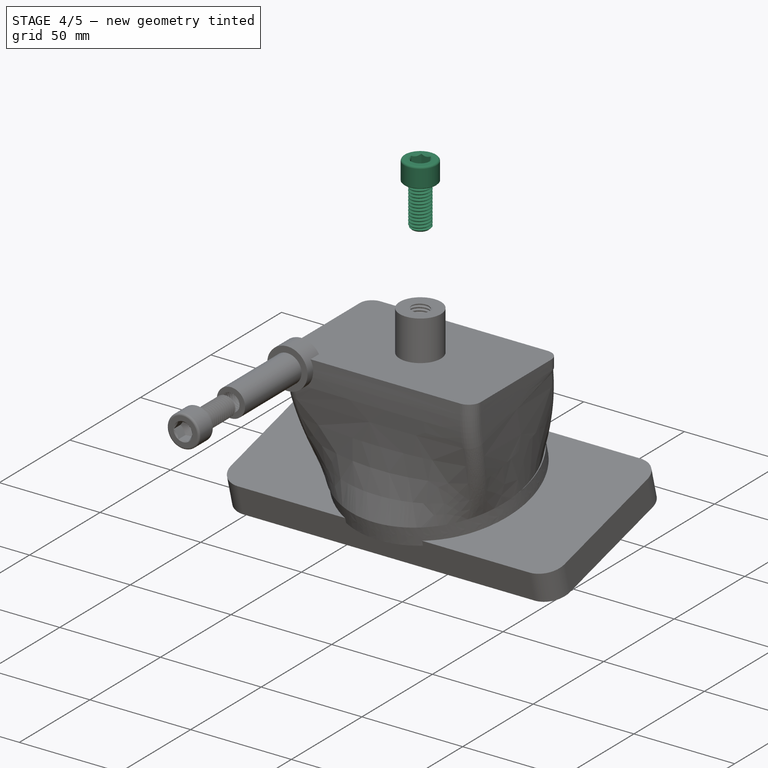
[diagram: stage 4 of 5 — iso view after this stage's code; geometry added in this stage tinted green]
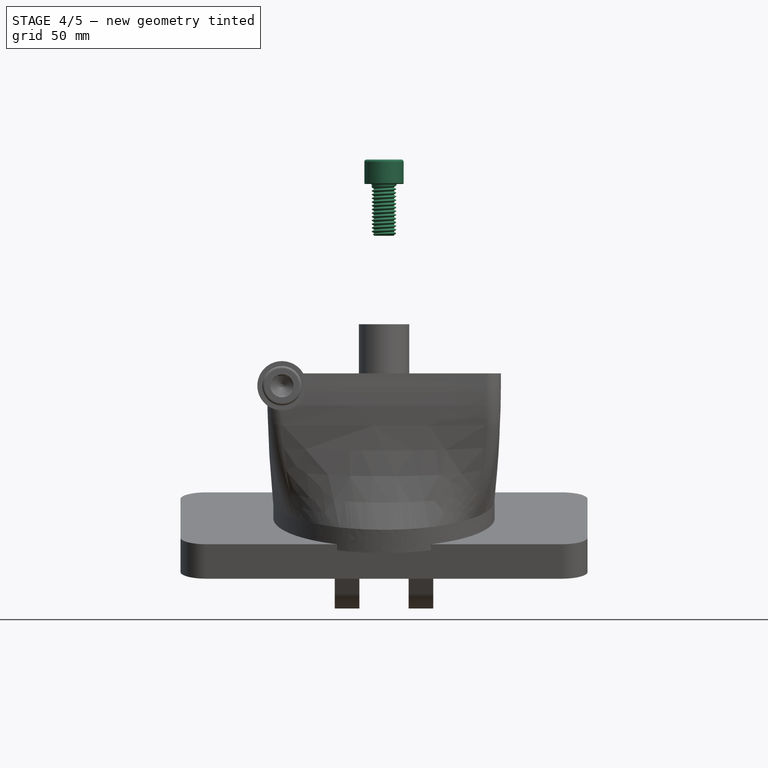
[diagram: stage 4 of 5 — front view after this stage's code; geometry added in this stage tinted green]
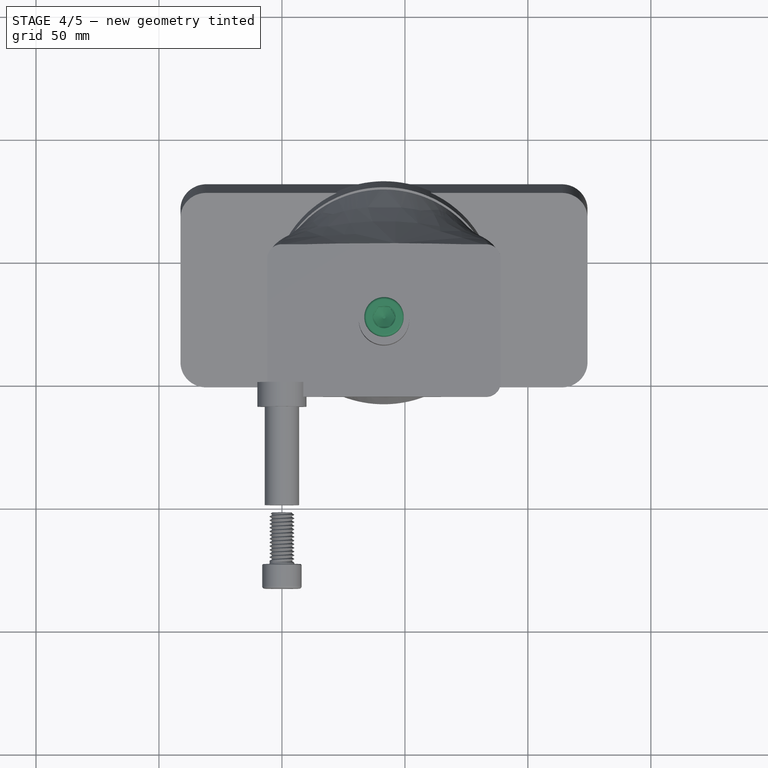
[diagram: stage 4 of 5 — top view after this stage's code; geometry added in this stage tinted green]
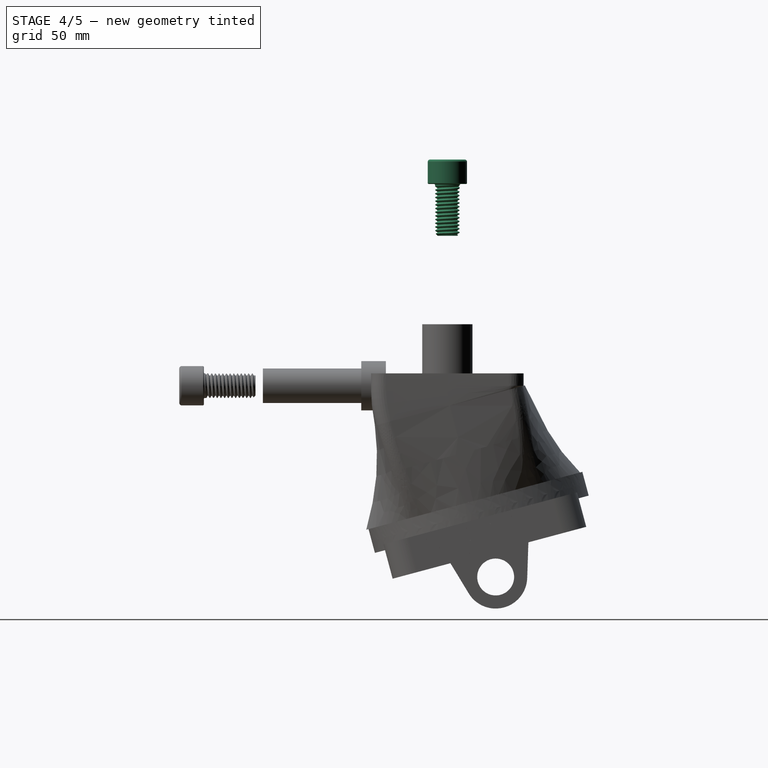
[diagram: stage 4 of 5 — right view after this stage's code; geometry added in this stage tinted green]
FEATURE [PartDesign::FeaturePython] InvoluteGear002  # WARN: FeaturePython — macro-defined, semantics opaque (R4)
  AttacherType = Attacher::AttachEngine3D
  AttachmentSupport = -> [Hole001,Sketch011]
  MapMode = 6
  Placement = pos=(41.5,7.42948,-54.4255) rot=(0,0.991445,0.130526;3.14159rad)
  Suppressed = false
  angular_backlash = 0
  backlash = 0
  beta = 15
  clearance = 0.25
  da = 24
  df = 15
  double_helix = true
  dw = 20
  head = 0
  head_fillet = 0
  height = 10
  module = 2
  numpoints = 20
  pressure_angle = 20
  properties_from_tool = false
  reversed_backlash = false
  root_fillet = 0
  shift = 0
  simple = false
  teeth = 10
  transverse_pitch = 6.28319
  traverse_module = 2
  undercut = false
  version = 1.2.0
  expr: angular_backlash = backlash / dw * 360 ° / pi
FEATURE [PartDesign::FeaturePython] InvoluteGear003  # WARN: FeaturePython — macro-defined, semantics opaque (R4)
  AttacherType = Attacher::AttachEngine3D
  AttachmentSupport = -> [Hole001,Sketch011]
  MapMode = 6
  Placement = pos=(41.5,65.385,-38.8963) rot=(0,0.991445,0.130526;3.14159rad)
  Suppressed = false
  angular_backlash = 0
  backlash = 0
  beta = 15
  clearance = 0.25
  da = 24
  df = 15
  double_helix = true
  dw = 20
  head = 0
  head_fillet = 0
  height = 10
  module = 2
  numpoints = 20
  pressure_angle = 20
  properties_from_tool = false
  reversed_backlash = false
  root_fillet = 0
  shift = 0
  simple = false
  teeth = 10
  transverse_pitch = 6.28319
  traverse_module = 2
  undercut = false
  version = 1.2.0
  expr: angular_backlash = backlash / dw * 360 ° / pi
FEATURE [PartDesign::FeaturePython] InvoluteGear004  # WARN: FeaturePython — macro-defined, semantics opaque (R4)
  AttacherType = Attacher::AttachEngine3D
  AttachmentSupport = -> [Hole001,Sketch011]
  MapMode = 6
  Placement = pos=(71.5,36.4073,-46.6609) rot=(0,0.991445,0.130526;3.14159rad)
  Suppressed = false
  angular_backlash = 0
  backlash = 0
  beta = 15
  clearance = 0.25
  da = 24
  df = 15
  double_helix = true
  dw = 20
  head = 0
  head_fillet = 0
  height = 10
  module = 2
  numpoints = 20
  pressure_angle = 20
  properties_from_tool = false
  reversed_backlash = false
  root_fillet = 0
  shift = 0
  simple = false
  teeth = 10
  transverse_pitch = 6.28319
  traverse_module = 2
  undercut = false
  version = 1.2.0
  expr: angular_backlash = backlash / dw * 360 ° / pi
FEATURE [PartDesign::Body] Body004  label="planet gear001"
  AllowCompound = false
  Group = -> [InvoluteGear001,Sketch016,Pocket002]
  Origin = -> Origin005
  Tip = -> Pocket002
FEATURE [Sketcher::SketchObject] Sketch017
  ArcFitTolerance = 1e-06
  AttachmentSupport = -> [InvoluteGear003]
  FullyConstrained = true
  MakeInternals = false
  MapMode = 5
  Placement = pos=(41.5004,67.9731,-48.5552) rot=(3e-06,0.991445,0.130523;3.14155rad)
  sketch-geometry (1):
    g0: Circle CenterX=0 CenterY=0 CenterZ=0 NormalX=0 NormalY=0 NormalZ=1 AngleXU=0 Radius=2.5
  constraints (2):
    c: Diameter(g0) = 5
    c: Tangent(g0,g-1) = -1.5708
FEATURE [PartDesign::Pocket] Pocket003
  BaseFeature = -> InvoluteGear003
  Direction = (-3.96271e-05,-0.258814,0.965927)
  Length = 10
  Length2 = 5
  Placement = pos=(41.5,65.385,-38.8963) rot=(0,0.991445,0.130526;3.14159rad)
  Profile = -> Sketch017
  ReferenceAxis = -> Sketch017 [N_Axis]
  Refine = true
  Suppressed = false
  Type = 0
FEATURE [PartDesign::Body] Body005  label="planet gear 2"
  AllowCompound = false
  Group = -> [InvoluteGear003,Sketch017,Pocket003]
  Origin = -> Origin006
  Tip = -> Pocket003
FEATURE [Sketcher::SketchObject] Sketch019
  ArcFitTolerance = 1e-06
  AttachmentSupport = -> [InvoluteGear002]
  FullyConstrained = true
  MakeInternals = false
  MapMode = 5
  Placement = pos=(41.5004,10.0175,-64.0843) rot=(3e-06,0.991445,0.130523;3.14155rad)
  sketch-geometry (1):
    g0: Circle CenterX=0 CenterY=0 CenterZ=0 NormalX=0 NormalY=0 NormalZ=1 AngleXU=0 Radius=2.5
  constraints (2):
    c: Diameter(g0) = 5
    c: Coincident(g0,g-1)
FEATURE [PartDesign::Pocket] Pocket004
  BaseFeature = -> InvoluteGear002
  Direction = (-3.96271e-05,-0.258814,0.965927)
  Length = 10
  Length2 = 5
  Placement = pos=(41.5,7.42948,-54.4255) rot=(0,0.991445,0.130526;3.14159rad)
  Profile = -> Sketch019
  ReferenceAxis = -> Sketch019 [N_Axis]
  Refine = true
  Suppressed = false
  Type = 0
FEATURE [PartDesign::Body] Body007  label="planet gear 4"
  AllowCompound = false
  Group = -> [InvoluteGear002,Sketch019,Pocket004]
  Origin = -> Origin008
  Tip = -> Pocket004
FEATURE [Sketcher::SketchObject] Sketch020
  ArcFitTolerance = 1e-06
  AttachmentSupport = -> [InvoluteGear004]
  FullyConstrained = true
  MakeInternals = false
  MapMode = 5
  Placement = pos=(71.5004,38.9953,-56.3198) rot=(3e-06,0.991445,0.130523;3.14155rad)
  sketch-geometry (1):
    g0: Circle CenterX=0 CenterY=0 CenterZ=0 NormalX=0 NormalY=0 NormalZ=1 AngleXU=0 Radius=2.5
  constraints (2):
    c: Diameter(g0) = 5
    c: Coincident(g0,g-1)
FEATURE [PartDesign::Pocket] Pocket005
  BaseFeature = -> InvoluteGear004
  Direction = (-3.96271e-05,-0.258814,0.965927)
  Length = 10
  Length2 = 5
  Placement = pos=(71.5,36.4073,-46.6609) rot=(0,0.991445,0.130526;3.14159rad)
  Profile = -> Sketch020
  ReferenceAxis = -> Sketch020 [N_Axis]
  Refine = true
  Suppressed = false
  Type = 0
FEATURE [PartDesign::Body] Body006  label="planet gear 3"
  AllowCompound = false
  Group = -> [InvoluteGear004,Sketch020,Pocket005]
  Origin = -> Origin007
  Tip = -> Pocket005
FEATURE [Part::FeaturePython] Screw  label="M10x21-Tornillo"  # WARN: FeaturePython — macro-defined, semantics opaque (R4)
  Diameter = 9
  Invert = false
  LeftHanded = false
  Length = 15
  LengthCustom = 21
  MatchOuter = false
  OffsetAngle = 118
  Placement = pos=(41.5,25,82) rot=(0,0,1;0rad)
  Thread = true
  Type = 74
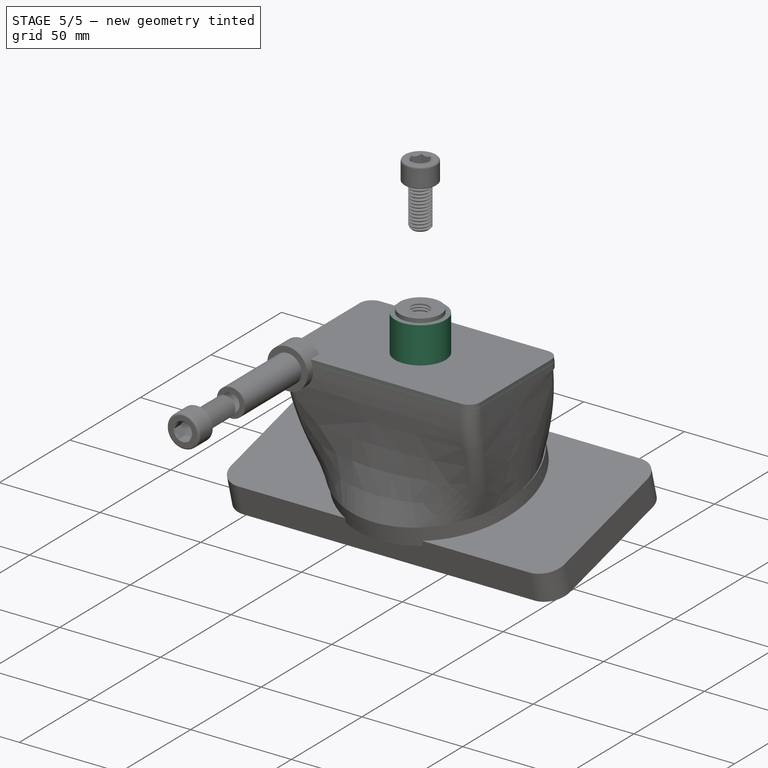
[diagram: stage 5 of 5 — iso view after this stage's code; geometry added in this stage tinted green]
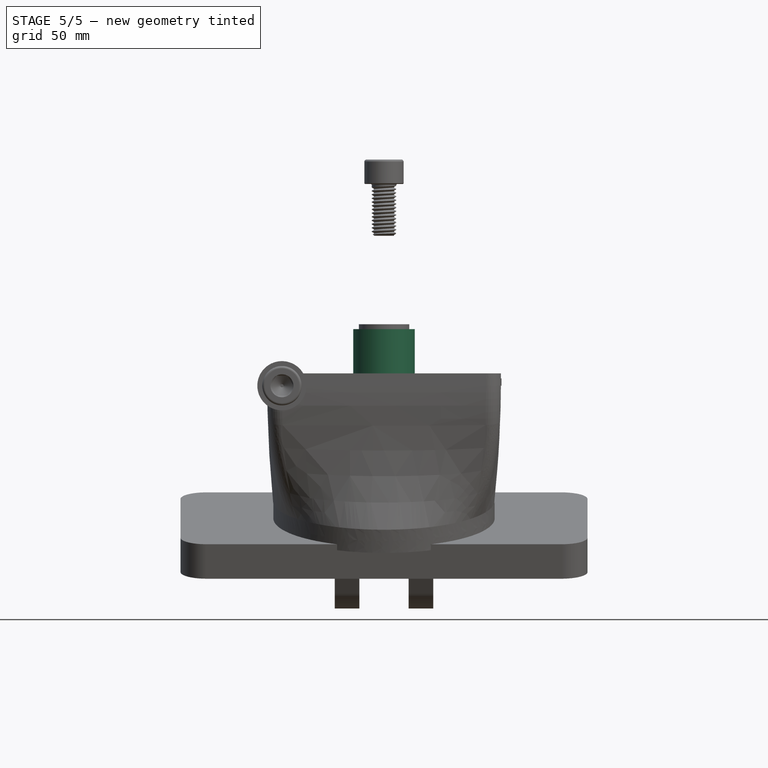
[diagram: stage 5 of 5 — front view after this stage's code; geometry added in this stage tinted green]
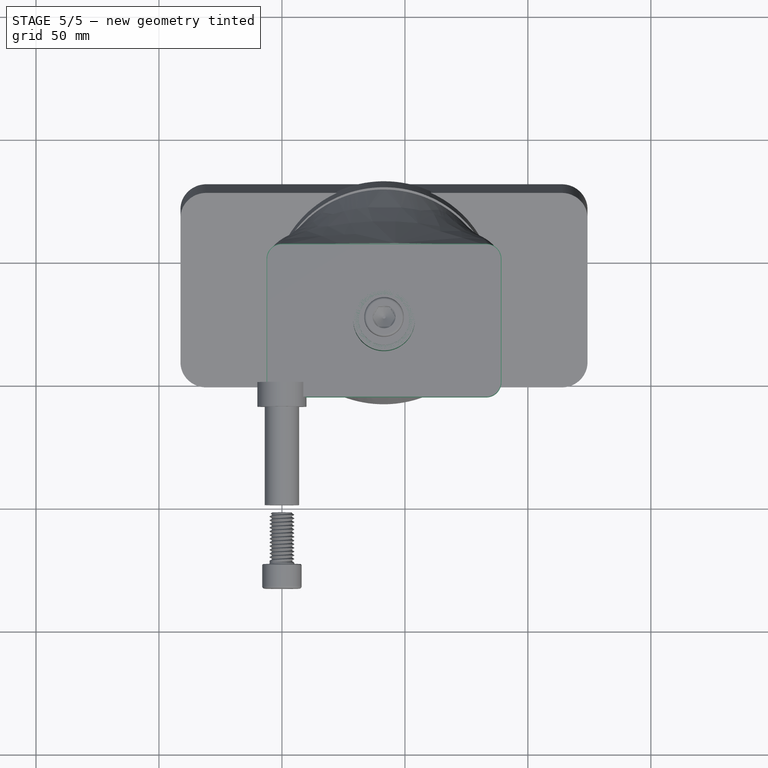
[diagram: stage 5 of 5 — top view after this stage's code; geometry added in this stage tinted green]
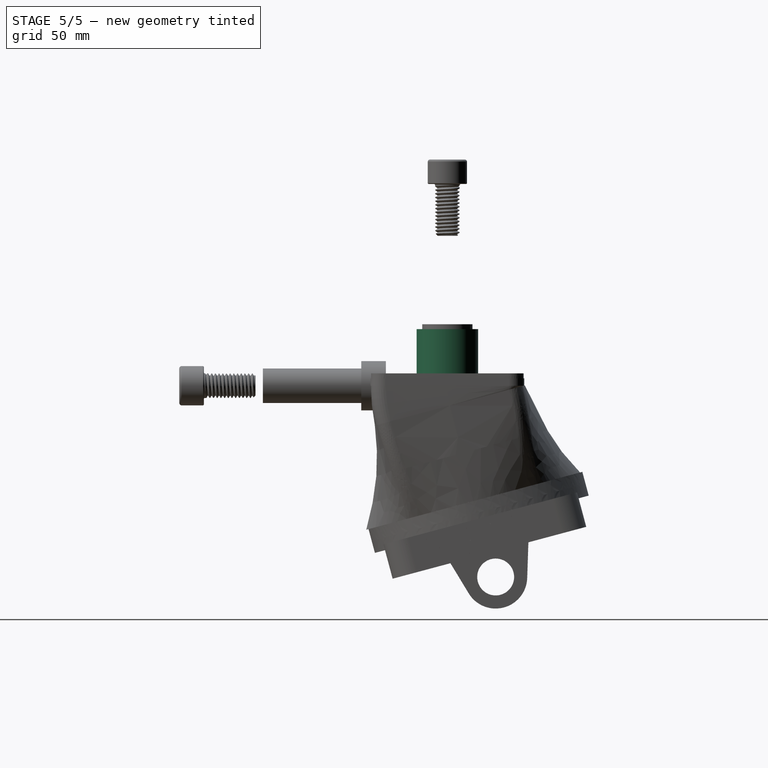
[diagram: stage 5 of 5 — right view after this stage's code; geometry added in this stage tinted green]
FEATURE [Sketcher::SketchObject] Sketch
  ArcFitTolerance = 0
  AttachmentSupport = -> [XY_Plane]
  FullyConstrained = false
  MakeInternals = false
  MapMode = 5
  sketch-geometry (17):
    g0: LineSegment [constr] StartX=0 StartY=0 StartZ=0 EndX=83 EndY=0 EndZ=0
    g1: LineSegment [constr] StartX=83 StartY=0 StartZ=0 EndX=83 EndY=50 EndZ=0
    g2: LineSegment [constr] StartX=83 StartY=50 StartZ=0 EndX=0 EndY=50 EndZ=0
    g3: LineSegment [constr] StartX=0 StartY=50 StartZ=0 EndX=0 EndY=0 EndZ=0
    g4: Circle CenterX=83 CenterY=50 CenterZ=0 NormalX=0 NormalY=0 NormalZ=1 AngleXU=0 Radius=1.25
    g5: Circle CenterX=83 CenterY=0 CenterZ=0 NormalX=0 NormalY=0 NormalZ=1 AngleXU=0 Radius=1.25
    g6: Circle [constr] CenterX=0 CenterY=50 CenterZ=0 NormalX=0 NormalY=0 NormalZ=1 AngleXU=0 Radius=0
    g7: Circle CenterX=0 CenterY=0 CenterZ=0 NormalX=0 NormalY=0 NormalZ=1 AngleXU=0 Radius=1.25
    g8: Circle CenterX=0 CenterY=50 CenterZ=0 NormalX=0 NormalY=0 NormalZ=1 AngleXU=0 Radius=1.25
    g9: LineSegment StartX=-1.1e-15 StartY=-6.25 StartZ=0 EndX=83 EndY=-6.25 EndZ=0
    g10: LineSegment StartX=89.25 StartY=-1.5e-15 StartZ=0 EndX=89.25 EndY=50 EndZ=0
    g11: LineSegment StartX=83 StartY=56.25 StartZ=0 EndX=0 EndY=56.25 EndZ=0
    g12: LineSegment StartX=-6.25 StartY=50 StartZ=0 EndX=-6.25 EndY=0 EndZ=0
    g13: ArcOfCircle CenterX=83 CenterY=0 CenterZ=0 NormalX=0 NormalY=0 NormalZ=1 AngleXU=0 Radius=6.25 StartAngle=4.71239 EndAngle=6.28319
    g14: ArcOfCircle CenterX=0 CenterY=50 CenterZ=0 NormalX=0 NormalY=0 NormalZ=1 AngleXU=0 Radius=6.25 StartAngle=1.5708 EndAngle=3.14159
    g15: ArcOfCircle CenterX=83 CenterY=50 CenterZ=0 NormalX=0 NormalY=0 NormalZ=1 AngleXU=0 Radius=6.25 StartAngle=0 EndAngle=1.5708
    g16: ArcOfCircle CenterX=0 CenterY=0 CenterZ=0 NormalX=0 NormalY=0 NormalZ=1 AngleXU=0 Radius=6.25 StartAngle=3.14159 EndAngle=4.71239
  constraints (40):
    c: Coincident(g0,g1)
    c: Coincident(g1,g2)
    c: Coincident(g2,g3)
    c: Coincident(g3,g0)
    c: Horizontal(g0)
    c: Horizontal(g2)
    c: Vertical(g1)
    c: Vertical(g3)
    c: Distance(g1,g3) = 83
    c: Distance(g0,g2) = 50
    c: Coincident(g0,g-1)
    c: Diameter(g4) = 2.5
    c: Coincident(g4,g1)
    c: Coincident(g5,g0)
    c: Coincident(g6,g2)
    c: Tangent(g6,g-2)
    c: Coincident(g7,g0)
    c: Coincident(g8,g2)
    c: Equal(g8,g4)
    c: Equal(g4,g5)
    c: Equal(g5,g7)
    c: Horizontal(g9)
    c: Horizontal(g11)
    c: Vertical(g10)
    c: Vertical(g12)
    c: Distance(g7,g12) = 5
    c: Distance(g7,g9) = 5
    c: Distance(g4,g11) = 5
    c: Distance(g4,g10) = 5
    c: Coincident(g13,g0)
    c: Coincident(g14,g2)
    c: Coincident(g15,g1)
    c: Coincident(g16,g0)
    c: Tangent(g15,g10) = -1.5708
    c: Tangent(g10,g13) = -1.5708
    c: Tangent(g16,g9) = -1.5708
    c: Tangent(g14,g12) = -1.5708
    c: DistanceY(g12,g12) = 50
    c: DistanceX(g11,g11) = 83
    c: DistanceX(g9,g9) = 83
FEATURE [PartDesign::Pad] Pad
  Direction = (0,0,1)
  Length = 3
  Length2 = 10
  Profile = -> Sketch
  ReferenceAxis = -> Sketch [N_Axis]
  Refine = true
  Suppressed = false
  Type = 0
FEATURE [Sketcher::SketchObject] Sketch001
  ArcFitTolerance = 0
  AttachmentSupport = -> [Pad]
  ExternalGeometry = -> [Pad]
  FullyConstrained = false
  MakeInternals = false
  MapMode = 5
  Placement = pos=(0,0,3) rot=(0,0,1;0rad)
  sketch-geometry (3):
    g0: LineSegment [constr] StartX=41.5 StartY=73.0114 StartZ=0 EndX=41.5 EndY=25 EndZ=0
    g1: LineSegment [constr] StartX=-13.1753 StartY=25 StartZ=0 EndX=111.75 EndY=25 EndZ=0
    g2: Circle CenterX=41.5 CenterY=25 CenterZ=0 NormalX=0 NormalY=0 NormalZ=1 AngleXU=0 Radius=12.5
  constraints (5):
    c: Symmetric(g-4,g-4,g0)
    c: Symmetric(g-3,g-3,g1)
    c: PointOnObject(g0,g1)
    c: Diameter(g2) = 25
    c: Coincident(g2,g0)
FEATURE [PartDesign::Pad] Pad001
  BaseFeature = -> Pad
  Direction = (0,0,1)
  Length = 20
  Length2 = 10
  Profile = -> Sketch001
  ReferenceAxis = -> Sketch001 [N_Axis]
  Refine = true
  Suppressed = false
  Type = 0
FEATURE [PartDesign::Point] DatumPoint003
  AttacherType = Attacher::AttachEnginePoint
  AttachmentSupport = -> [Pad004]
  MapMode = 37
  Placement = pos=(41.4968,42.1031,-67.9108) rot=(0,0,1;0rad)
FEATURE [Part::FeaturePython] InvoluteGear  # WARN: FeaturePython — macro-defined, semantics opaque (R4)
  AttacherType = Attacher::AttachEngine3D
  AttachmentSupport = -> [Pad004,DatumPoint003]
  MapMode = 6
  Placement = pos=(41.4968,38.9972,-56.3197) rot=(0.129428,0.129428,-0.983106;1.58783rad)
  angular_backlash = 0
  backlash = 0
  beta = 15
  clearance = 0.25
  da = 44
  df = 35
  double_helix = true
  dw = 40
  head = 0
  head_fillet = 0
  height = 10
  module = 2
  numpoints = 20
  pressure_angle = 20
  properties_from_tool = false
  reversed_backlash = false
  root_fillet = 0
  shift = 0
  simple = false
  teeth = 20
  transverse_pitch = 6.28319
  traverse_module = 2
  undercut = false
  version = 1.2.0
  expr: angular_backlash = backlash / dw * 360 ° / pi
FEATURE [Sketcher::SketchObject] Sketch011
  ArcFitTolerance = 1e-06
  FullyConstrained = false
  MakeInternals = false
  MapMode = 5
  Placement = pos=(0,14.1299,-52.7336) rot=(1,0,0;3.40339rad)
  sketch-geometry (9):
    g0: LineSegment StartX=41.5 StartY=-23.09 StartZ=0 EndX=41.5 EndY=6.91 EndZ=0
    g1: LineSegment StartX=41.5 StartY=-23.09 StartZ=0 EndX=71.5 EndY=-23.09 EndZ=0
    g2: LineSegment StartX=41.5 StartY=-23.09 StartZ=0 EndX=41.5 EndY=-53.09 EndZ=0
    g3: LineSegment StartX=41.5 StartY=-23.09 StartZ=0 EndX=11.5 EndY=-23.09 EndZ=0
    g4: LineSegment [constr] StartX=41.5 StartY=-23.09 StartZ=0 EndX=41.5 EndY=-53.09 EndZ=0
    g5: LineSegment [constr] StartX=41.5 StartY=-23.09 StartZ=0 EndX=62.7132 EndY=-1.8768 EndZ=0
    g6: LineSegment [constr] StartX=41.5 StartY=-23.09 StartZ=0 EndX=62.7132 EndY=-44.3032 EndZ=0
    g7: LineSegment [constr] StartX=41.5 StartY=-23.09 StartZ=0 EndX=20.2868 EndY=-44.3032 EndZ=0
    g8: LineSegment [constr] StartX=41.5 StartY=-23.09 StartZ=0 EndX=20.2868 EndY=-1.8768 EndZ=0
  constraints (19):
    c: Vertical(g0)
    c: Horizontal(g1)
    c: Coincident(g1,g0)
    c: Vertical(g2)
    c: Coincident(g2,g0)
    c: Distance(g3) = 30
    c: Horizontal(g3)
    c: Coincident(g3,g0)
    c: Equal(g2,g1)
    c: Equal(g1,g0)
    c: Equal(g0,g3)
    c: Block(g3)
    c: Distance(g4) = 30
    c: Distance(g5) = 30
    c: Angle(g-1,g5) = 0.785398
    c: Coincident(g5,g4)
    c: Distance(g6) = 30
    c: Distance(g7) = 30
    c: Distance(g8) = 30
FEATURE [Sketcher::SketchObject] Sketch012
  ArcFitTolerance = 1e-06
  ExternalGeometry = -> [Pad001]
  FullyConstrained = true
  MakeInternals = false
  MapMode = 5
  Placement = pos=(0,0,20) rot=(0,0,1;0rad)
  sketch-geometry (1):
    g0: Circle CenterX=41.5 CenterY=25 CenterZ=0 NormalX=0 NormalY=0 NormalZ=1 AngleXU=0 Radius=10
  constraints (2):
    c: Diameter(g0) = 20
    c: Coincident(g0,g-3)
FEATURE [PartDesign::Pocket] Pocket001
  BaseFeature = -> Pad001
  Direction = (0,0,-1)
  Length = 20
  Length2 = 5
  Profile = -> Sketch012
  ReferenceAxis = -> Sketch012 [N_Axis]
  Refine = true
  Suppressed = false
  Type = 1
FEATURE [PartDesign::Hole] Hole
  BaseFeature = -> Pocket001
  CustomThreadClearance = 0
  Depth = 235.185
  DepthType = 1
  Diameter = 8.532
  DrillForDepth = false
  DrillPoint = 1
  DrillPointAngle = 118
  HoleCutCountersinkAngle = 90
  HoleCutCustomValues = false
  HoleCutDepth = 0
  HoleCutDiameter = 6.1
  HoleCutType = 0
  ModelThread = true
  Profile = -> Pocket001 [Face18]
  Refine = true
  Suppressed = false
  Tapered = false
  TaperedAngle = 90
  ThreadClass = 0
  ThreadDepth = 235.185
  ThreadDepthType = 0
  ThreadDirection = 0
  ThreadFit = 0
  ThreadSize = 18
  ThreadType = 1
  Threaded = true
  UseCustomThreadClearance = false
FEATURE [PartDesign::FeaturePython] InvoluteGear001  # WARN: FeaturePython — macro-defined, semantics opaque (R4)
  AttacherType = Attacher::AttachEngine3D
  AttachmentSupport = -> [Hole001,Sketch011]
  MapMode = 6
  Placement = pos=(11.5,36.4073,-46.6609) rot=(0,0.991445,0.130526;3.14159rad)
  Suppressed = false
  angular_backlash = 0
  backlash = 0
  beta = 15
  clearance = 0.25
  da = 24
  df = 15
  double_helix = true
  dw = 20
  head = 0
  head_fillet = 0
  height = 10
  module = 2
  numpoints = 20
  pressure_angle = 20
  properties_from_tool = false
  reversed_backlash = false
  root_fillet = 0
  shift = 0
  simple = false
  teeth = 10
  transverse_pitch = 6.28319
  traverse_module = 2
  undercut = false
  version = 1.2.0
  expr: angular_backlash = backlash / dw * 360 ° / pi
FEATURE [Sketcher::SketchObject] Sketch016
  ArcFitTolerance = 1e-06
  AttachmentSupport = -> [InvoluteGear001]
  FullyConstrained = true
  MakeInternals = false
  MapMode = 5
  Placement = pos=(11.5004,38.9953,-56.3198) rot=(3e-06,0.991445,0.130523;3.14155rad)
  sketch-geometry (1):
    g0: Circle CenterX=0 CenterY=0 CenterZ=0 NormalX=0 NormalY=0 NormalZ=1 AngleXU=0 Radius=2.5
  constraints (2):
    c: Diameter(g0) = 5
    c: Coincident(g0,g-1)
FEATURE [PartDesign::Pocket] Pocket002
  BaseFeature = -> InvoluteGear001
  Direction = (-3.96271e-05,-0.258814,0.965927)
  Length = 10
  Length2 = 5
  Placement = pos=(11.5,36.4073,-46.6609) rot=(0,0.991445,0.130526;3.14159rad)
  Profile = -> Sketch016
  ReferenceAxis = -> Sketch016 [N_Axis]
  Refine = true
  Suppressed = false
  Type = 0
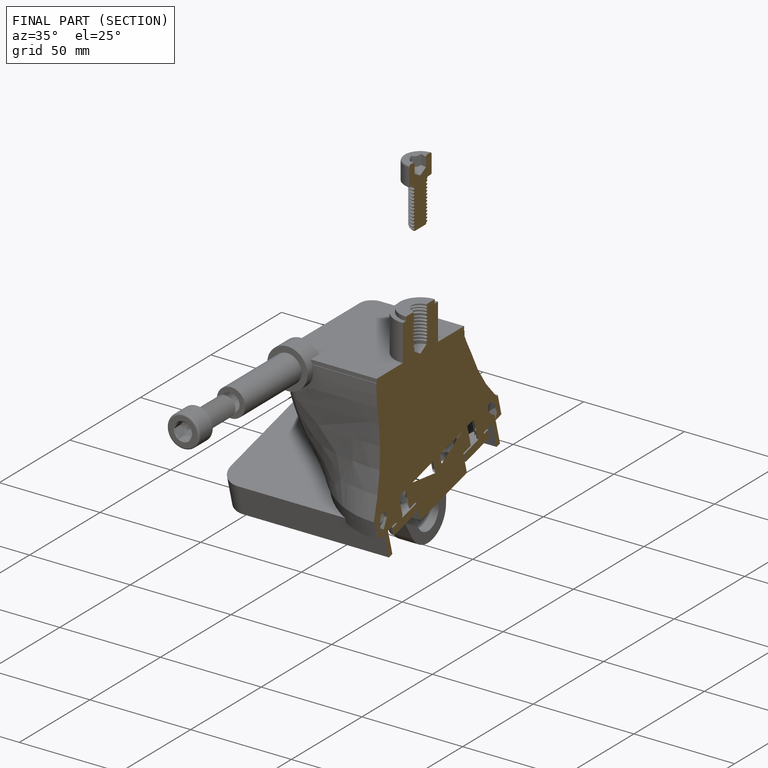
[diagram: finished part — half-section view (interior)]
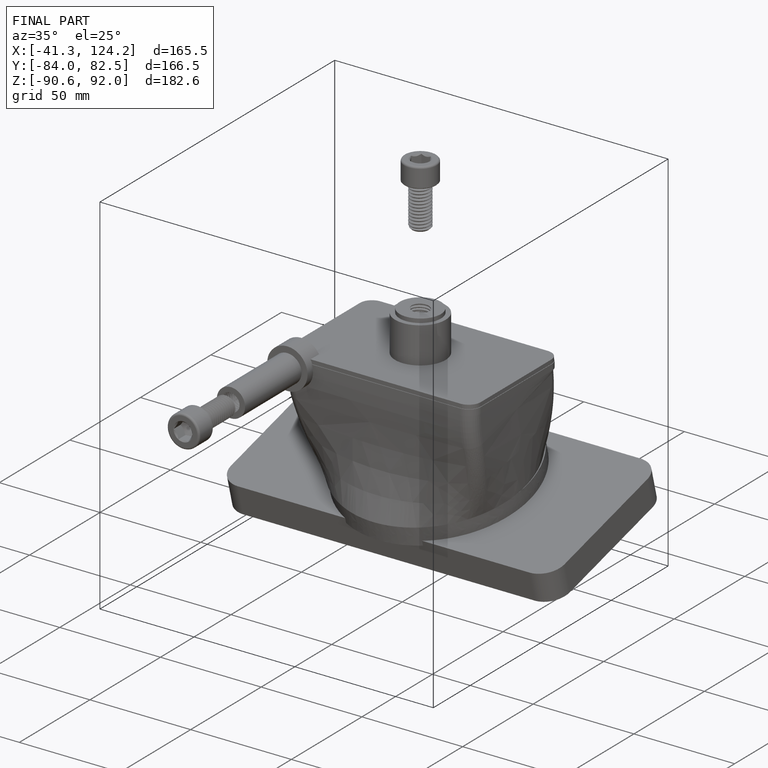
[diagram: finished part — iso view with bounding-box wireframe]
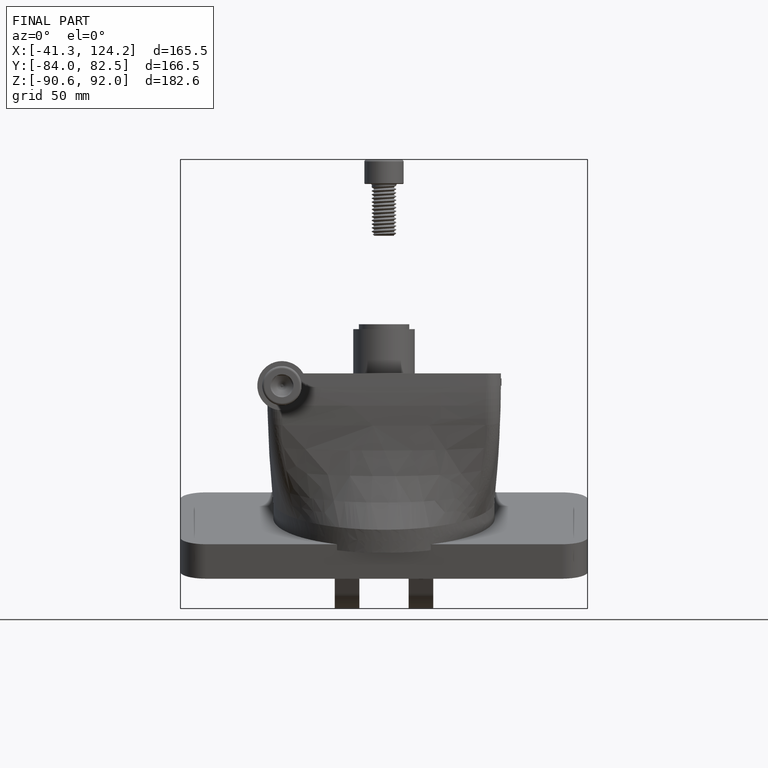
[diagram: finished part — front view with bounding-box wireframe]
